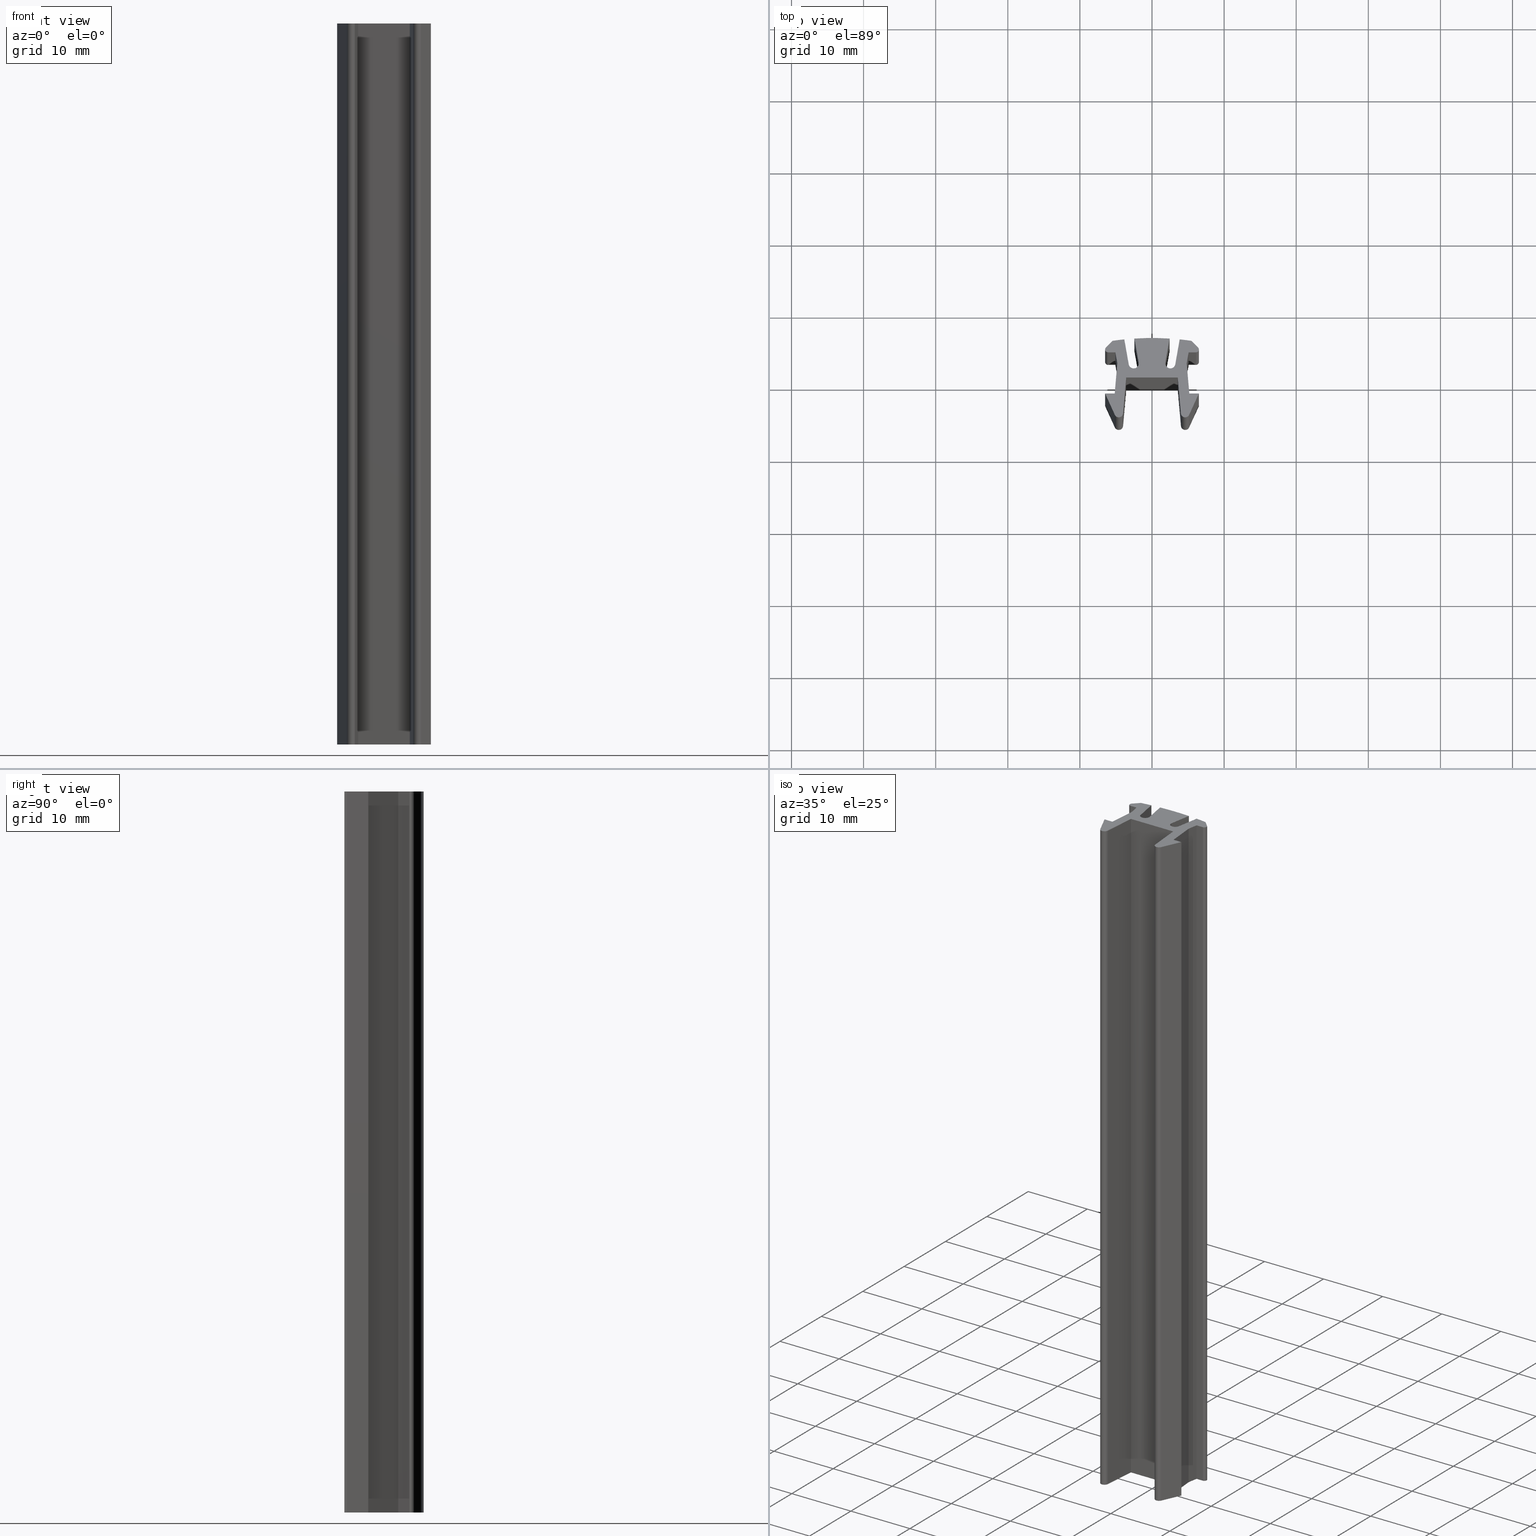
[diagram: canonical four-view strip — front | top / right | iso, engineering-drawing reading convention]
A machine part, canonical four-view strip (front | top / right | iso — engineering-drawing reading convention). The complete STEP part file that produces these views, byte-faithful:
ISO-10303-21;
HEADER;
/* Generated by software containing ST-Developer
 * from STEP Tools, Inc. (www.steptools.com) 
 */

FILE_DESCRIPTION(
/* description */ ('GUARN. COPRICAVA 10 PVC SEMIRIGID GRIGIA'),
/* implementation_level */ '2;1');

FILE_NAME(
/* name */ 'C:\\Users\\Tecnico5\\Documents\\CGUCA0000001.stp',
/* time_stamp */ '2020-07-14T10:42:14+02:00',
/* author */ ('tecnico5'),
/* organization */ (''),
/* preprocessor_version */ 'ST-DEVELOPER v17.2',
/* originating_system */ 'Autodesk Inventor 2019',
/* authorisation */ '');

FILE_SCHEMA (('AUTOMOTIVE_DESIGN { 1 0 10303 214 3 1 1 }'));
ENDSEC;

DATA;
#10=MECHANICAL_DESIGN_GEOMETRIC_PRESENTATION_REPRESENTATION('',(#75,#76,
#77,#78,#79,#80,#81,#82,#83,#84,#85,#86,#87,#88,#89,#90,#91,#92,#93,#94,
#95,#96,#97,#98,#99,#100,#101,#102,#103,#104,#105,#106,#107,#108,#109,#110,
#111,#112,#113,#114,#115,#116,#117,#118,#119,#120,#121,#122,#123,#124),
#1316);
#11=GEOMETRICALLY_BOUNDED_WIREFRAME_SHAPE_REPRESENTATION('',(#12,#13),#1315);
#12=GEOMETRIC_CURVE_SET('Schizzo1',(#35,#17,#18,#36,#37,#38,#19,#39,#40,
#20,#41,#42,#43,#44,#45,#46,#47,#48,#49,#50,#51,#52,#21,#53,#22,#23,#24,
#54,#25,#55));
#13=GEOMETRIC_CURVE_SET('Schizzo2',(#26,#56,#57,#58,#59,#60,#61,#27,#62,
#63,#64,#65,#66,#28,#67,#29,#68,#30,#69,#70,#31,#71,#32,#72,#33,#73,#74,
#34));
#14=SHAPE_REPRESENTATION_RELATIONSHIP('SRR','None',#1323,#16);
#15=SHAPE_REPRESENTATION_RELATIONSHIP('SRR','None',#1323,#11);
#16=ADVANCED_BREP_SHAPE_REPRESENTATION('',(#125),#1315);
#17=TRIMMED_CURVE('',#144,(#1182,PARAMETER_VALUE(3.56844741996877)),(#1183,
PARAMETER_VALUE(6.19591884457987)),.T.,.PARAMETER.);
#18=TRIMMED_CURVE('',#145,(#1185,PARAMETER_VALUE(3.22885911618951)),(#1186,
PARAMETER_VALUE(5.85633054080061)),.T.,.PARAMETER.);
#19=TRIMMED_CURVE('',#146,(#1194,PARAMETER_VALUE(2.35619455200195)),(#1195,
PARAMETER_VALUE(4.71238898038469)),.T.,.PARAMETER.);
#20=TRIMMED_CURVE('',#147,(#1201,PARAMETER_VALUE(4.71238898038469)),(#1202,
PARAMETER_VALUE(7.06858353238664)),.T.,.PARAMETER.);
#21=TRIMMED_CURVE('',#148,(#1228,PARAMETER_VALUE(3.31612557878923)),(#1229,
PARAMETER_VALUE(6.45771823237902)),.T.,.PARAMETER.);
#22=TRIMMED_CURVE('',#149,(#1233,PARAMETER_VALUE(1.67093266645578)),(#1234,
PARAMETER_VALUE(1.71376967660972)),.T.,.PARAMETER.);
#23=TRIMMED_CURVE('',#150,(#1236,PARAMETER_VALUE(1.42782297698007)),(#1237,
PARAMETER_VALUE(1.47065998636121)),.T.,.PARAMETER.);
#24=TRIMMED_CURVE('',#151,(#1239,PARAMETER_VALUE(1.50728109828847)),(#1240,
PARAMETER_VALUE(1.63431155452589)),.T.,.PARAMETER.);
#25=TRIMMED_CURVE('',#152,(#1244,PARAMETER_VALUE(2.96705972839036)),(#1245,
PARAMETER_VALUE(6.10865238198015)),.T.,.PARAMETER.);
#26=TRIMMED_CURVE('',#153,(#1249,PARAMETER_VALUE(3.22885911618951)),(#1250,
PARAMETER_VALUE(5.85633054080061)),.T.,.PARAMETER.);
#27=TRIMMED_CURVE('',#154,(#1264,PARAMETER_VALUE(3.56844741996877)),(#1265,
PARAMETER_VALUE(6.19591884457987)),.T.,.PARAMETER.);
#28=TRIMMED_CURVE('',#155,(#1277,PARAMETER_VALUE(2.35619455200195)),(#1278,
PARAMETER_VALUE(4.71238898038469)),.T.,.PARAMETER.);
#29=TRIMMED_CURVE('',#156,(#1282,PARAMETER_VALUE(1.67093266645578)),(#1283,
PARAMETER_VALUE(1.71376967660972)),.T.,.PARAMETER.);
#30=TRIMMED_CURVE('',#157,(#1287,PARAMETER_VALUE(3.31612557878923)),(#1288,
PARAMETER_VALUE(6.45771823237902)),.T.,.PARAMETER.);
#31=TRIMMED_CURVE('',#158,(#1294,PARAMETER_VALUE(2.96705972839036)),(#1295,
PARAMETER_VALUE(6.10865238198015)),.T.,.PARAMETER.);
#32=TRIMMED_CURVE('',#159,(#1299,PARAMETER_VALUE(1.42782297698007)),(#1300,
PARAMETER_VALUE(1.47065998636121)),.T.,.PARAMETER.);
#33=TRIMMED_CURVE('',#160,(#1304,PARAMETER_VALUE(4.71238898038469)),(#1305,
PARAMETER_VALUE(7.06858353238664)),.T.,.PARAMETER.);
#34=TRIMMED_CURVE('',#161,(#1311,PARAMETER_VALUE(1.50728109828847)),(#1312,
PARAMETER_VALUE(1.63431155452589)),.T.,.PARAMETER.);
#35=POLYLINE('',(#1179,#1180));
#36=POLYLINE('',(#1187,#1188));
#37=POLYLINE('',(#1189,#1190));
#38=POLYLINE('',(#1191,#1192));
#39=POLYLINE('',(#1196,#1197));
#40=POLYLINE('',(#1198,#1199));
#41=POLYLINE('',(#1203,#1204));
#42=POLYLINE('',(#1205,#1206));
#43=POLYLINE('',(#1207,#1208));
#44=POLYLINE('',(#1209,#1210));
#45=POLYLINE('',(#1211,#1212));
#46=POLYLINE('',(#1213,#1214));
#47=POLYLINE('',(#1215,#1216));
#48=POLYLINE('',(#1217,#1218));
#49=POLYLINE('',(#1219,#1220));
#50=POLYLINE('',(#1221,#1222));
#51=POLYLINE('',(#1223,#1224));
#52=POLYLINE('',(#1225,#1226));
#53=POLYLINE('',(#1230,#1231));
#54=POLYLINE('',(#1241,#1242));
#55=POLYLINE('',(#1246,#1247));
#56=POLYLINE('',(#1251,#1252));
#57=POLYLINE('',(#1253,#1254));
#58=POLYLINE('',(#1255,#1256));
#59=POLYLINE('',(#1257,#1258));
#60=POLYLINE('',(#1259,#1260));
#61=POLYLINE('',(#1261,#1262));
#62=POLYLINE('',(#1266,#1267));
#63=POLYLINE('',(#1268,#1269));
#64=POLYLINE('',(#1270,#1271));
#65=POLYLINE('',(#1272,#1273));
#66=POLYLINE('',(#1274,#1275));
#67=POLYLINE('',(#1279,#1280));
#68=POLYLINE('',(#1284,#1285));
#69=POLYLINE('',(#1289,#1290));
#70=POLYLINE('',(#1291,#1292));
#71=POLYLINE('',(#1296,#1297));
#72=POLYLINE('',(#1301,#1302));
#73=POLYLINE('',(#1306,#1307));
#74=POLYLINE('',(#1308,#1309));
#75=STYLED_ITEM('',(#1332),#125);
#76=STYLED_ITEM('',(#1333),#35);
#77=STYLED_ITEM('',(#1333),#17);
#78=STYLED_ITEM('',(#1333),#18);
#79=STYLED_ITEM('',(#1333),#36);
#80=STYLED_ITEM('',(#1333),#37);
#81=STYLED_ITEM('',(#1333),#38);
#82=STYLED_ITEM('',(#1333),#41);
#83=STYLED_ITEM('',(#1333),#42);
#84=STYLED_ITEM('',(#1333),#43);
#85=STYLED_ITEM('',(#1333),#44);
#86=STYLED_ITEM('',(#1333),#45);
#87=STYLED_ITEM('',(#1333),#46);
#88=STYLED_ITEM('',(#1333),#47);
#89=STYLED_ITEM('',(#1333),#50);
#90=STYLED_ITEM('',(#1333),#51);
#91=STYLED_ITEM('',(#1333),#52);
#92=STYLED_ITEM('',(#1333),#21);
#93=STYLED_ITEM('',(#1333),#53);
#94=STYLED_ITEM('',(#1333),#54);
#95=STYLED_ITEM('',(#1333),#25);
#96=STYLED_ITEM('',(#1333),#55);
#97=STYLED_ITEM('',(#1334),#26);
#98=STYLED_ITEM('',(#1334),#56);
#99=STYLED_ITEM('',(#1334),#57);
#100=STYLED_ITEM('',(#1334),#58);
#101=STYLED_ITEM('',(#1334),#59);
#102=STYLED_ITEM('',(#1334),#60);
#103=STYLED_ITEM('',(#1334),#61);
#104=STYLED_ITEM('',(#1334),#27);
#105=STYLED_ITEM('',(#1334),#62);
#106=STYLED_ITEM('',(#1334),#63);
#107=STYLED_ITEM('',(#1334),#64);
#108=STYLED_ITEM('',(#1334),#65);
#109=STYLED_ITEM('',(#1334),#66);
#110=STYLED_ITEM('',(#1334),#28);
#111=STYLED_ITEM('',(#1334),#67);
#112=STYLED_ITEM('',(#1334),#29);
#113=STYLED_ITEM('',(#1334),#68);
#114=STYLED_ITEM('',(#1334),#30);
#115=STYLED_ITEM('',(#1334),#69);
#116=STYLED_ITEM('',(#1334),#70);
#117=STYLED_ITEM('',(#1334),#31);
#118=STYLED_ITEM('',(#1334),#71);
#119=STYLED_ITEM('',(#1334),#32);
#120=STYLED_ITEM('',(#1334),#72);
#121=STYLED_ITEM('',(#1334),#33);
#122=STYLED_ITEM('',(#1334),#73);
#123=STYLED_ITEM('',(#1334),#74);
#124=STYLED_ITEM('',(#1334),#34);
#125=MANIFOLD_SOLID_BREP('Solido2',#722);
#126=CIRCLE('',#746,0.6);
#127=CIRCLE('',#747,0.6);
#128=CIRCLE('',#754,0.4);
#129=CIRCLE('',#755,0.4);
#130=CIRCLE('',#758,38.3963333612448);
#131=CIRCLE('',#759,38.3963333612448);
#132=CIRCLE('',#762,0.7);
#133=CIRCLE('',#763,0.7);
#134=CIRCLE('',#766,38.3963333612448);
#135=CIRCLE('',#767,38.3963333612448);
#136=CIRCLE('',#770,0.699999999999999);
#137=CIRCLE('',#771,0.699999999999999);
#138=CIRCLE('',#774,38.3963333612448);
#139=CIRCLE('',#775,38.3963333612448);
#140=CIRCLE('',#778,0.4);
#141=CIRCLE('',#779,0.4);
#142=CIRCLE('',#786,0.6);
#143=CIRCLE('',#787,0.6);
#144=CIRCLE('',#790,0.6);
#145=CIRCLE('',#791,0.6);
#146=CIRCLE('',#792,0.4);
#147=CIRCLE('',#793,0.4);
#148=CIRCLE('',#794,0.7);
#149=CIRCLE('',#795,38.3963333612448);
#150=CIRCLE('',#796,38.3963333612448);
#151=CIRCLE('',#797,38.3963333612448);
#152=CIRCLE('',#798,0.7);
#153=CIRCLE('',#799,0.6);
#154=CIRCLE('',#800,0.6);
#155=CIRCLE('',#801,0.4);
#156=CIRCLE('',#802,38.3963333612448);
#157=CIRCLE('',#803,0.7);
#158=CIRCLE('',#804,0.699999999999999);
#159=CIRCLE('',#805,38.3963333612448);
#160=CIRCLE('',#806,0.4);
#161=CIRCLE('',#807,38.3963333612448);
#162=CYLINDRICAL_SURFACE('',#745,0.6);
#163=CYLINDRICAL_SURFACE('',#753,0.4);
#164=CYLINDRICAL_SURFACE('',#757,38.3963333612448);
#165=CYLINDRICAL_SURFACE('',#761,0.7);
#166=CYLINDRICAL_SURFACE('',#765,38.3963333612448);
#167=CYLINDRICAL_SURFACE('',#769,0.699999999999999);
#168=CYLINDRICAL_SURFACE('',#773,38.3963333612448);
#169=CYLINDRICAL_SURFACE('',#777,0.4);
#170=CYLINDRICAL_SURFACE('',#785,0.6);
#171=FACE_OUTER_BOUND('',#201,.T.);
#172=FACE_OUTER_BOUND('',#202,.T.);
#173=FACE_OUTER_BOUND('',#203,.T.);
#174=FACE_OUTER_BOUND('',#204,.T.);
#175=FACE_OUTER_BOUND('',#205,.T.);
#176=FACE_OUTER_BOUND('',#206,.T.);
#177=FACE_OUTER_BOUND('',#207,.T.);
#178=FACE_OUTER_BOUND('',#208,.T.);
#179=FACE_OUTER_BOUND('',#209,.T.);
#180=FACE_OUTER_BOUND('',#210,.T.);
#181=FACE_OUTER_BOUND('',#211,.T.);
#182=FACE_OUTER_BOUND('',#212,.T.);
#183=FACE_OUTER_BOUND('',#213,.T.);
#184=FACE_OUTER_BOUND('',#214,.T.);
#185=FACE_OUTER_BOUND('',#215,.T.);
#186=FACE_OUTER_BOUND('',#216,.T.);
#187=FACE_OUTER_BOUND('',#217,.T.);
#188=FACE_OUTER_BOUND('',#218,.T.);
#189=FACE_OUTER_BOUND('',#219,.T.);
#190=FACE_OUTER_BOUND('',#220,.T.);
#191=FACE_OUTER_BOUND('',#221,.T.);
#192=FACE_OUTER_BOUND('',#222,.T.);
#193=FACE_OUTER_BOUND('',#223,.T.);
#194=FACE_OUTER_BOUND('',#224,.T.);
#195=FACE_OUTER_BOUND('',#225,.T.);
#196=FACE_OUTER_BOUND('',#226,.T.);
#197=FACE_OUTER_BOUND('',#227,.T.);
#198=FACE_OUTER_BOUND('',#228,.T.);
#199=FACE_OUTER_BOUND('',#229,.T.);
#200=FACE_OUTER_BOUND('',#230,.T.);
#201=EDGE_LOOP('',(#503,#504,#505,#506));
#202=EDGE_LOOP('',(#507,#508,#509,#510));
#203=EDGE_LOOP('',(#511,#512,#513,#514));
#204=EDGE_LOOP('',(#515,#516,#517,#518));
#205=EDGE_LOOP('',(#519,#520,#521,#522));
#206=EDGE_LOOP('',(#523,#524,#525,#526));
#207=EDGE_LOOP('',(#527,#528,#529,#530));
#208=EDGE_LOOP('',(#531,#532,#533,#534));
#209=EDGE_LOOP('',(#535,#536,#537,#538));
#210=EDGE_LOOP('',(#539,#540,#541,#542));
#211=EDGE_LOOP('',(#543,#544,#545,#546));
#212=EDGE_LOOP('',(#547,#548,#549,#550));
#213=EDGE_LOOP('',(#551,#552,#553,#554));
#214=EDGE_LOOP('',(#555,#556,#557,#558));
#215=EDGE_LOOP('',(#559,#560,#561,#562));
#216=EDGE_LOOP('',(#563,#564,#565,#566));
#217=EDGE_LOOP('',(#567,#568,#569,#570));
#218=EDGE_LOOP('',(#571,#572,#573,#574));
#219=EDGE_LOOP('',(#575,#576,#577,#578));
#220=EDGE_LOOP('',(#579,#580,#581,#582));
#221=EDGE_LOOP('',(#583,#584,#585,#586));
#222=EDGE_LOOP('',(#587,#588,#589,#590));
#223=EDGE_LOOP('',(#591,#592,#593,#594));
#224=EDGE_LOOP('',(#595,#596,#597,#598));
#225=EDGE_LOOP('',(#599,#600,#601,#602));
#226=EDGE_LOOP('',(#603,#604,#605,#606));
#227=EDGE_LOOP('',(#607,#608,#609,#610));
#228=EDGE_LOOP('',(#611,#612,#613,#614));
#229=EDGE_LOOP('',(#615,#616,#617,#618,#619,#620,#621,#622,#623,#624,#625,
#626,#627,#628,#629,#630,#631,#632,#633,#634,#635,#636,#637,#638,#639,#640,
#641,#642));
#230=EDGE_LOOP('',(#643,#644,#645,#646,#647,#648,#649,#650,#651,#652,#653,
#654,#655,#656,#657,#658,#659,#660,#661,#662,#663,#664,#665,#666,#667,#668,
#669,#670));
#231=LINE('',#1012,#297);
#232=LINE('',#1014,#298);
#233=LINE('',#1016,#299);
#234=LINE('',#1017,#300);
#235=LINE('',#1020,#301);
#236=LINE('',#1022,#302);
#237=LINE('',#1023,#303);
#238=LINE('',#1026,#304);
#239=LINE('',#1028,#305);
#240=LINE('',#1029,#306);
#241=LINE('',#1035,#307);
#242=LINE('',#1038,#308);
#243=LINE('',#1040,#309);
#244=LINE('',#1041,#310);
#245=LINE('',#1044,#311);
#246=LINE('',#1046,#312);
#247=LINE('',#1047,#313);
#248=LINE('',#1050,#314);
#249=LINE('',#1052,#315);
#250=LINE('',#1053,#316);
#251=LINE('',#1056,#317);
#252=LINE('',#1058,#318);
#253=LINE('',#1059,#319);
#254=LINE('',#1062,#320);
#255=LINE('',#1064,#321);
#256=LINE('',#1065,#322);
#257=LINE('',#1071,#323);
#258=LINE('',#1074,#324);
#259=LINE('',#1076,#325);
#260=LINE('',#1077,#326);
#261=LINE('',#1083,#327);
#262=LINE('',#1086,#328);
#263=LINE('',#1088,#329);
#264=LINE('',#1089,#330);
#265=LINE('',#1095,#331);
#266=LINE('',#1098,#332);
#267=LINE('',#1100,#333);
#268=LINE('',#1101,#334);
#269=LINE('',#1107,#335);
#270=LINE('',#1110,#336);
#271=LINE('',#1112,#337);
#272=LINE('',#1113,#338);
#273=LINE('',#1119,#339);
#274=LINE('',#1122,#340);
#275=LINE('',#1124,#341);
#276=LINE('',#1125,#342);
#277=LINE('',#1131,#343);
#278=LINE('',#1134,#344);
#279=LINE('',#1136,#345);
#280=LINE('',#1137,#346);
#281=LINE('',#1143,#347);
#282=LINE('',#1146,#348);
#283=LINE('',#1148,#349);
#284=LINE('',#1149,#350);
#285=LINE('',#1152,#351);
#286=LINE('',#1154,#352);
#287=LINE('',#1155,#353);
#288=LINE('',#1158,#354);
#289=LINE('',#1160,#355);
#290=LINE('',#1161,#356);
#291=LINE('',#1164,#357);
#292=LINE('',#1166,#358);
#293=LINE('',#1167,#359);
#294=LINE('',#1170,#360);
#295=LINE('',#1172,#361);
#296=LINE('',#1173,#362);
#297=VECTOR('',#812,10.);
#298=VECTOR('',#813,10.);
#299=VECTOR('',#814,10.);
#300=VECTOR('',#815,10.);
#301=VECTOR('',#818,10.);
#302=VECTOR('',#819,10.);
#303=VECTOR('',#820,10.);
#304=VECTOR('',#823,10.);
#305=VECTOR('',#824,10.);
#306=VECTOR('',#825,10.);
#307=VECTOR('',#832,10.);
#308=VECTOR('',#835,10.);
#309=VECTOR('',#836,10.);
#310=VECTOR('',#837,10.);
#311=VECTOR('',#840,10.);
#312=VECTOR('',#841,10.);
#313=VECTOR('',#842,10.);
#314=VECTOR('',#845,10.);
#315=VECTOR('',#846,10.);
#316=VECTOR('',#847,10.);
#317=VECTOR('',#850,10.);
#318=VECTOR('',#851,10.);
#319=VECTOR('',#852,10.);
#320=VECTOR('',#855,10.);
#321=VECTOR('',#856,10.);
#322=VECTOR('',#857,10.);
#323=VECTOR('',#864,10.);
#324=VECTOR('',#867,10.);
#325=VECTOR('',#868,10.);
#326=VECTOR('',#869,10.);
#327=VECTOR('',#876,10.);
#328=VECTOR('',#879,10.);
#329=VECTOR('',#880,10.);
#330=VECTOR('',#881,10.);
#331=VECTOR('',#888,10.);
#332=VECTOR('',#891,10.);
#333=VECTOR('',#892,10.);
#334=VECTOR('',#893,10.);
#335=VECTOR('',#900,10.);
#336=VECTOR('',#903,10.);
#337=VECTOR('',#904,10.);
#338=VECTOR('',#905,10.);
#339=VECTOR('',#912,10.);
#340=VECTOR('',#915,10.);
#341=VECTOR('',#916,10.);
#342=VECTOR('',#917,10.);
#343=VECTOR('',#924,10.);
#344=VECTOR('',#927,10.);
#345=VECTOR('',#928,10.);
#346=VECTOR('',#929,10.);
#347=VECTOR('',#936,10.);
#348=VECTOR('',#939,10.);
#349=VECTOR('',#940,10.);
#350=VECTOR('',#941,10.);
#351=VECTOR('',#944,10.);
#352=VECTOR('',#945,10.);
#353=VECTOR('',#946,10.);
#354=VECTOR('',#949,10.);
#355=VECTOR('',#950,10.);
#356=VECTOR('',#951,10.);
#357=VECTOR('',#954,10.);
#358=VECTOR('',#955,10.);
#359=VECTOR('',#956,10.);
#360=VECTOR('',#959,10.);
#361=VECTOR('',#960,10.);
#362=VECTOR('',#961,10.);
#363=VERTEX_POINT('',#1010);
#364=VERTEX_POINT('',#1011);
#365=VERTEX_POINT('',#1013);
#366=VERTEX_POINT('',#1015);
#367=VERTEX_POINT('',#1019);
#368=VERTEX_POINT('',#1021);
#369=VERTEX_POINT('',#1025);
#370=VERTEX_POINT('',#1027);
#371=VERTEX_POINT('',#1031);
#372=VERTEX_POINT('',#1033);
#373=VERTEX_POINT('',#1037);
#374=VERTEX_POINT('',#1039);
#375=VERTEX_POINT('',#1043);
#376=VERTEX_POINT('',#1045);
#377=VERTEX_POINT('',#1049);
#378=VERTEX_POINT('',#1051);
#379=VERTEX_POINT('',#1055);
#380=VERTEX_POINT('',#1057);
#381=VERTEX_POINT('',#1061);
#382=VERTEX_POINT('',#1063);
#383=VERTEX_POINT('',#1067);
#384=VERTEX_POINT('',#1069);
#385=VERTEX_POINT('',#1073);
#386=VERTEX_POINT('',#1075);
#387=VERTEX_POINT('',#1079);
#388=VERTEX_POINT('',#1081);
#389=VERTEX_POINT('',#1085);
#390=VERTEX_POINT('',#1087);
#391=VERTEX_POINT('',#1091);
#392=VERTEX_POINT('',#1093);
#393=VERTEX_POINT('',#1097);
#394=VERTEX_POINT('',#1099);
#395=VERTEX_POINT('',#1103);
#396=VERTEX_POINT('',#1105);
#397=VERTEX_POINT('',#1109);
#398=VERTEX_POINT('',#1111);
#399=VERTEX_POINT('',#1115);
#400=VERTEX_POINT('',#1117);
#401=VERTEX_POINT('',#1121);
#402=VERTEX_POINT('',#1123);
#403=VERTEX_POINT('',#1127);
#404=VERTEX_POINT('',#1129);
#405=VERTEX_POINT('',#1133);
#406=VERTEX_POINT('',#1135);
#407=VERTEX_POINT('',#1139);
#408=VERTEX_POINT('',#1141);
#409=VERTEX_POINT('',#1145);
#410=VERTEX_POINT('',#1147);
#411=VERTEX_POINT('',#1151);
#412=VERTEX_POINT('',#1153);
#413=VERTEX_POINT('',#1157);
#414=VERTEX_POINT('',#1159);
#415=VERTEX_POINT('',#1163);
#416=VERTEX_POINT('',#1165);
#417=VERTEX_POINT('',#1169);
#418=VERTEX_POINT('',#1171);
#419=EDGE_CURVE('',#363,#364,#231,.T.);
#420=EDGE_CURVE('',#364,#365,#232,.T.);
#421=EDGE_CURVE('',#366,#365,#233,.T.);
#422=EDGE_CURVE('',#363,#366,#234,.T.);
#423=EDGE_CURVE('',#367,#363,#235,.T.);
#424=EDGE_CURVE('',#368,#366,#236,.T.);
#425=EDGE_CURVE('',#367,#368,#237,.T.);
#426=EDGE_CURVE('',#369,#367,#238,.T.);
#427=EDGE_CURVE('',#370,#368,#239,.T.);
#428=EDGE_CURVE('',#369,#370,#240,.T.);
#429=EDGE_CURVE('',#371,#369,#126,.T.);
#430=EDGE_CURVE('',#372,#370,#127,.T.);
#431=EDGE_CURVE('',#371,#372,#241,.T.);
#432=EDGE_CURVE('',#373,#371,#242,.T.);
#433=EDGE_CURVE('',#374,#372,#243,.T.);
#434=EDGE_CURVE('',#373,#374,#244,.T.);
#435=EDGE_CURVE('',#375,#373,#245,.T.);
#436=EDGE_CURVE('',#376,#374,#246,.T.);
#437=EDGE_CURVE('',#375,#376,#247,.T.);
#438=EDGE_CURVE('',#377,#375,#248,.T.);
#439=EDGE_CURVE('',#378,#376,#249,.T.);
#440=EDGE_CURVE('',#377,#378,#250,.T.);
#441=EDGE_CURVE('',#379,#377,#251,.T.);
#442=EDGE_CURVE('',#380,#378,#252,.T.);
#443=EDGE_CURVE('',#379,#380,#253,.T.);
#444=EDGE_CURVE('',#381,#379,#254,.T.);
#445=EDGE_CURVE('',#382,#380,#255,.T.);
#446=EDGE_CURVE('',#381,#382,#256,.T.);
#447=EDGE_CURVE('',#383,#381,#128,.T.);
#448=EDGE_CURVE('',#384,#382,#129,.T.);
#449=EDGE_CURVE('',#383,#384,#257,.T.);
#450=EDGE_CURVE('',#385,#383,#258,.T.);
#451=EDGE_CURVE('',#386,#384,#259,.T.);
#452=EDGE_CURVE('',#385,#386,#260,.T.);
#453=EDGE_CURVE('',#387,#385,#130,.T.);
#454=EDGE_CURVE('',#388,#386,#131,.T.);
#455=EDGE_CURVE('',#387,#388,#261,.T.);
#456=EDGE_CURVE('',#389,#387,#262,.T.);
#457=EDGE_CURVE('',#390,#388,#263,.T.);
#458=EDGE_CURVE('',#389,#390,#264,.T.);
#459=EDGE_CURVE('',#391,#389,#132,.T.);
#460=EDGE_CURVE('',#392,#390,#133,.T.);
#461=EDGE_CURVE('',#391,#392,#265,.T.);
#462=EDGE_CURVE('',#393,#391,#266,.T.);
#463=EDGE_CURVE('',#394,#392,#267,.T.);
#464=EDGE_CURVE('',#393,#394,#268,.T.);
#465=EDGE_CURVE('',#395,#393,#134,.T.);
#466=EDGE_CURVE('',#396,#394,#135,.T.);
#467=EDGE_CURVE('',#395,#396,#269,.T.);
#468=EDGE_CURVE('',#397,#395,#270,.T.);
#469=EDGE_CURVE('',#398,#396,#271,.T.);
#470=EDGE_CURVE('',#397,#398,#272,.T.);
#471=EDGE_CURVE('',#399,#397,#136,.T.);
#472=EDGE_CURVE('',#400,#398,#137,.T.);
#473=EDGE_CURVE('',#399,#400,#273,.T.);
#474=EDGE_CURVE('',#401,#399,#274,.T.);
#475=EDGE_CURVE('',#402,#400,#275,.T.);
#476=EDGE_CURVE('',#401,#402,#276,.T.);
#477=EDGE_CURVE('',#403,#401,#138,.T.);
#478=EDGE_CURVE('',#404,#402,#139,.T.);
#479=EDGE_CURVE('',#403,#404,#277,.T.);
#480=EDGE_CURVE('',#405,#403,#278,.T.);
#481=EDGE_CURVE('',#406,#404,#279,.T.);
#482=EDGE_CURVE('',#405,#406,#280,.T.);
#483=EDGE_CURVE('',#407,#405,#140,.T.);
#484=EDGE_CURVE('',#408,#406,#141,.T.);
#485=EDGE_CURVE('',#407,#408,#281,.T.);
#486=EDGE_CURVE('',#409,#407,#282,.T.);
#487=EDGE_CURVE('',#410,#408,#283,.T.);
#488=EDGE_CURVE('',#409,#410,#284,.T.);
#489=EDGE_CURVE('',#411,#409,#285,.T.);
#490=EDGE_CURVE('',#412,#410,#286,.T.);
#491=EDGE_CURVE('',#411,#412,#287,.T.);
#492=EDGE_CURVE('',#413,#411,#288,.T.);
#493=EDGE_CURVE('',#414,#412,#289,.T.);
#494=EDGE_CURVE('',#413,#414,#290,.T.);
#495=EDGE_CURVE('',#415,#413,#291,.T.);
#496=EDGE_CURVE('',#416,#414,#292,.T.);
#497=EDGE_CURVE('',#415,#416,#293,.T.);
#498=EDGE_CURVE('',#417,#415,#294,.T.);
#499=EDGE_CURVE('',#418,#416,#295,.T.);
#500=EDGE_CURVE('',#417,#418,#296,.T.);
#501=EDGE_CURVE('',#364,#417,#142,.T.);
#502=EDGE_CURVE('',#365,#418,#143,.T.);
#503=ORIENTED_EDGE('',*,*,#419,.T.);
#504=ORIENTED_EDGE('',*,*,#420,.T.);
#505=ORIENTED_EDGE('',*,*,#421,.F.);
#506=ORIENTED_EDGE('',*,*,#422,.F.);
#507=ORIENTED_EDGE('',*,*,#423,.T.);
#508=ORIENTED_EDGE('',*,*,#422,.T.);
#509=ORIENTED_EDGE('',*,*,#424,.F.);
#510=ORIENTED_EDGE('',*,*,#425,.F.);
#511=ORIENTED_EDGE('',*,*,#426,.T.);
#512=ORIENTED_EDGE('',*,*,#425,.T.);
#513=ORIENTED_EDGE('',*,*,#427,.F.);
#514=ORIENTED_EDGE('',*,*,#428,.F.);
#515=ORIENTED_EDGE('',*,*,#429,.T.);
#516=ORIENTED_EDGE('',*,*,#428,.T.);
#517=ORIENTED_EDGE('',*,*,#430,.F.);
#518=ORIENTED_EDGE('',*,*,#431,.F.);
#519=ORIENTED_EDGE('',*,*,#432,.T.);
#520=ORIENTED_EDGE('',*,*,#431,.T.);
#521=ORIENTED_EDGE('',*,*,#433,.F.);
#522=ORIENTED_EDGE('',*,*,#434,.F.);
#523=ORIENTED_EDGE('',*,*,#435,.T.);
#524=ORIENTED_EDGE('',*,*,#434,.T.);
#525=ORIENTED_EDGE('',*,*,#436,.F.);
#526=ORIENTED_EDGE('',*,*,#437,.F.);
#527=ORIENTED_EDGE('',*,*,#438,.T.);
#528=ORIENTED_EDGE('',*,*,#437,.T.);
#529=ORIENTED_EDGE('',*,*,#439,.F.);
#530=ORIENTED_EDGE('',*,*,#440,.F.);
#531=ORIENTED_EDGE('',*,*,#441,.T.);
#532=ORIENTED_EDGE('',*,*,#440,.T.);
#533=ORIENTED_EDGE('',*,*,#442,.F.);
#534=ORIENTED_EDGE('',*,*,#443,.F.);
#535=ORIENTED_EDGE('',*,*,#444,.T.);
#536=ORIENTED_EDGE('',*,*,#443,.T.);
#537=ORIENTED_EDGE('',*,*,#445,.F.);
#538=ORIENTED_EDGE('',*,*,#446,.F.);
#539=ORIENTED_EDGE('',*,*,#447,.T.);
#540=ORIENTED_EDGE('',*,*,#446,.T.);
#541=ORIENTED_EDGE('',*,*,#448,.F.);
#542=ORIENTED_EDGE('',*,*,#449,.F.);
#543=ORIENTED_EDGE('',*,*,#450,.T.);
#544=ORIENTED_EDGE('',*,*,#449,.T.);
#545=ORIENTED_EDGE('',*,*,#451,.F.);
#546=ORIENTED_EDGE('',*,*,#452,.F.);
#547=ORIENTED_EDGE('',*,*,#453,.T.);
#548=ORIENTED_EDGE('',*,*,#452,.T.);
#549=ORIENTED_EDGE('',*,*,#454,.F.);
#550=ORIENTED_EDGE('',*,*,#455,.F.);
#551=ORIENTED_EDGE('',*,*,#456,.T.);
#552=ORIENTED_EDGE('',*,*,#455,.T.);
#553=ORIENTED_EDGE('',*,*,#457,.F.);
#554=ORIENTED_EDGE('',*,*,#458,.F.);
#555=ORIENTED_EDGE('',*,*,#459,.T.);
#556=ORIENTED_EDGE('',*,*,#458,.T.);
#557=ORIENTED_EDGE('',*,*,#460,.F.);
#558=ORIENTED_EDGE('',*,*,#461,.F.);
#559=ORIENTED_EDGE('',*,*,#462,.T.);
#560=ORIENTED_EDGE('',*,*,#461,.T.);
#561=ORIENTED_EDGE('',*,*,#463,.F.);
#562=ORIENTED_EDGE('',*,*,#464,.F.);
#563=ORIENTED_EDGE('',*,*,#465,.T.);
#564=ORIENTED_EDGE('',*,*,#464,.T.);
#565=ORIENTED_EDGE('',*,*,#466,.F.);
#566=ORIENTED_EDGE('',*,*,#467,.F.);
#567=ORIENTED_EDGE('',*,*,#468,.T.);
#568=ORIENTED_EDGE('',*,*,#467,.T.);
#569=ORIENTED_EDGE('',*,*,#469,.F.);
#570=ORIENTED_EDGE('',*,*,#470,.F.);
#571=ORIENTED_EDGE('',*,*,#471,.T.);
#572=ORIENTED_EDGE('',*,*,#470,.T.);
#573=ORIENTED_EDGE('',*,*,#472,.F.);
#574=ORIENTED_EDGE('',*,*,#473,.F.);
#575=ORIENTED_EDGE('',*,*,#474,.T.);
#576=ORIENTED_EDGE('',*,*,#473,.T.);
#577=ORIENTED_EDGE('',*,*,#475,.F.);
#578=ORIENTED_EDGE('',*,*,#476,.F.);
#579=ORIENTED_EDGE('',*,*,#477,.T.);
#580=ORIENTED_EDGE('',*,*,#476,.T.);
#581=ORIENTED_EDGE('',*,*,#478,.F.);
#582=ORIENTED_EDGE('',*,*,#479,.F.);
#583=ORIENTED_EDGE('',*,*,#480,.T.);
#584=ORIENTED_EDGE('',*,*,#479,.T.);
#585=ORIENTED_EDGE('',*,*,#481,.F.);
#586=ORIENTED_EDGE('',*,*,#482,.F.);
#587=ORIENTED_EDGE('',*,*,#483,.T.);
#588=ORIENTED_EDGE('',*,*,#482,.T.);
#589=ORIENTED_EDGE('',*,*,#484,.F.);
#590=ORIENTED_EDGE('',*,*,#485,.F.);
#591=ORIENTED_EDGE('',*,*,#486,.T.);
#592=ORIENTED_EDGE('',*,*,#485,.T.);
#593=ORIENTED_EDGE('',*,*,#487,.F.);
#594=ORIENTED_EDGE('',*,*,#488,.F.);
#595=ORIENTED_EDGE('',*,*,#489,.T.);
#596=ORIENTED_EDGE('',*,*,#488,.T.);
#597=ORIENTED_EDGE('',*,*,#490,.F.);
#598=ORIENTED_EDGE('',*,*,#491,.F.);
#599=ORIENTED_EDGE('',*,*,#492,.T.);
#600=ORIENTED_EDGE('',*,*,#491,.T.);
#601=ORIENTED_EDGE('',*,*,#493,.F.);
#602=ORIENTED_EDGE('',*,*,#494,.F.);
#603=ORIENTED_EDGE('',*,*,#495,.T.);
#604=ORIENTED_EDGE('',*,*,#494,.T.);
#605=ORIENTED_EDGE('',*,*,#496,.F.);
#606=ORIENTED_EDGE('',*,*,#497,.F.);
#607=ORIENTED_EDGE('',*,*,#498,.T.);
#608=ORIENTED_EDGE('',*,*,#497,.T.);
#609=ORIENTED_EDGE('',*,*,#499,.F.);
#610=ORIENTED_EDGE('',*,*,#500,.F.);
#611=ORIENTED_EDGE('',*,*,#501,.T.);
#612=ORIENTED_EDGE('',*,*,#500,.T.);
#613=ORIENTED_EDGE('',*,*,#502,.F.);
#614=ORIENTED_EDGE('',*,*,#420,.F.);
#615=ORIENTED_EDGE('',*,*,#502,.T.);
#616=ORIENTED_EDGE('',*,*,#499,.T.);
#617=ORIENTED_EDGE('',*,*,#496,.T.);
#618=ORIENTED_EDGE('',*,*,#493,.T.);
#619=ORIENTED_EDGE('',*,*,#490,.T.);
#620=ORIENTED_EDGE('',*,*,#487,.T.);
#621=ORIENTED_EDGE('',*,*,#484,.T.);
#622=ORIENTED_EDGE('',*,*,#481,.T.);
#623=ORIENTED_EDGE('',*,*,#478,.T.);
#624=ORIENTED_EDGE('',*,*,#475,.T.);
#625=ORIENTED_EDGE('',*,*,#472,.T.);
#626=ORIENTED_EDGE('',*,*,#469,.T.);
#627=ORIENTED_EDGE('',*,*,#466,.T.);
#628=ORIENTED_EDGE('',*,*,#463,.T.);
#629=ORIENTED_EDGE('',*,*,#460,.T.);
#630=ORIENTED_EDGE('',*,*,#457,.T.);
#631=ORIENTED_EDGE('',*,*,#454,.T.);
#632=ORIENTED_EDGE('',*,*,#451,.T.);
#633=ORIENTED_EDGE('',*,*,#448,.T.);
#634=ORIENTED_EDGE('',*,*,#445,.T.);
#635=ORIENTED_EDGE('',*,*,#442,.T.);
#636=ORIENTED_EDGE('',*,*,#439,.T.);
#637=ORIENTED_EDGE('',*,*,#436,.T.);
#638=ORIENTED_EDGE('',*,*,#433,.T.);
#639=ORIENTED_EDGE('',*,*,#430,.T.);
#640=ORIENTED_EDGE('',*,*,#427,.T.);
#641=ORIENTED_EDGE('',*,*,#424,.T.);
#642=ORIENTED_EDGE('',*,*,#421,.T.);
#643=ORIENTED_EDGE('',*,*,#501,.F.);
#644=ORIENTED_EDGE('',*,*,#419,.F.);
#645=ORIENTED_EDGE('',*,*,#423,.F.);
#646=ORIENTED_EDGE('',*,*,#426,.F.);
#647=ORIENTED_EDGE('',*,*,#429,.F.);
#648=ORIENTED_EDGE('',*,*,#432,.F.);
#649=ORIENTED_EDGE('',*,*,#435,.F.);
#650=ORIENTED_EDGE('',*,*,#438,.F.);
#651=ORIENTED_EDGE('',*,*,#441,.F.);
#652=ORIENTED_EDGE('',*,*,#444,.F.);
#653=ORIENTED_EDGE('',*,*,#447,.F.);
#654=ORIENTED_EDGE('',*,*,#450,.F.);
#655=ORIENTED_EDGE('',*,*,#453,.F.);
#656=ORIENTED_EDGE('',*,*,#456,.F.);
#657=ORIENTED_EDGE('',*,*,#459,.F.);
#658=ORIENTED_EDGE('',*,*,#462,.F.);
#659=ORIENTED_EDGE('',*,*,#465,.F.);
#660=ORIENTED_EDGE('',*,*,#468,.F.);
#661=ORIENTED_EDGE('',*,*,#471,.F.);
#662=ORIENTED_EDGE('',*,*,#474,.F.);
#663=ORIENTED_EDGE('',*,*,#477,.F.);
#664=ORIENTED_EDGE('',*,*,#480,.F.);
#665=ORIENTED_EDGE('',*,*,#483,.F.);
#666=ORIENTED_EDGE('',*,*,#486,.F.);
#667=ORIENTED_EDGE('',*,*,#489,.F.);
#668=ORIENTED_EDGE('',*,*,#492,.F.);
#669=ORIENTED_EDGE('',*,*,#495,.F.);
#670=ORIENTED_EDGE('',*,*,#498,.F.);
#671=PLANE('',#742);
#672=PLANE('',#743);
#673=PLANE('',#744);
#674=PLANE('',#748);
#675=PLANE('',#749);
#676=PLANE('',#750);
#677=PLANE('',#751);
#678=PLANE('',#752);
#679=PLANE('',#756);
#680=PLANE('',#760);
#681=PLANE('',#764);
#682=PLANE('',#768);
#683=PLANE('',#772);
#684=PLANE('',#776);
#685=PLANE('',#780);
#686=PLANE('',#781);
#687=PLANE('',#782);
#688=PLANE('',#783);
#689=PLANE('',#784);
#690=PLANE('',#788);
#691=PLANE('',#789);
#692=ADVANCED_FACE('',(#171),#671,.T.);
#693=ADVANCED_FACE('',(#172),#672,.T.);
#694=ADVANCED_FACE('',(#173),#673,.T.);
#695=ADVANCED_FACE('',(#174),#162,.T.);
#696=ADVANCED_FACE('',(#175),#674,.T.);
#697=ADVANCED_FACE('',(#176),#675,.T.);
#698=ADVANCED_FACE('',(#177),#676,.T.);
#699=ADVANCED_FACE('',(#178),#677,.T.);
#700=ADVANCED_FACE('',(#179),#678,.T.);
#701=ADVANCED_FACE('',(#180),#163,.T.);
#702=ADVANCED_FACE('',(#181),#679,.T.);
#703=ADVANCED_FACE('',(#182),#164,.T.);
#704=ADVANCED_FACE('',(#183),#680,.T.);
#705=ADVANCED_FACE('',(#184),#165,.F.);
#706=ADVANCED_FACE('',(#185),#681,.T.);
#707=ADVANCED_FACE('',(#186),#166,.T.);
#708=ADVANCED_FACE('',(#187),#682,.T.);
#709=ADVANCED_FACE('',(#188),#167,.F.);
#710=ADVANCED_FACE('',(#189),#683,.T.);
#711=ADVANCED_FACE('',(#190),#168,.T.);
#712=ADVANCED_FACE('',(#191),#684,.T.);
#713=ADVANCED_FACE('',(#192),#169,.T.);
#714=ADVANCED_FACE('',(#193),#685,.T.);
#715=ADVANCED_FACE('',(#194),#686,.T.);
#716=ADVANCED_FACE('',(#195),#687,.T.);
#717=ADVANCED_FACE('',(#196),#688,.T.);
#718=ADVANCED_FACE('',(#197),#689,.T.);
#719=ADVANCED_FACE('',(#198),#170,.T.);
#720=ADVANCED_FACE('',(#199),#690,.T.);
#721=ADVANCED_FACE('',(#200),#691,.F.);
#722=CLOSED_SHELL('',(#692,#693,#694,#695,#696,#697,#698,#699,#700,#701,
#702,#703,#704,#705,#706,#707,#708,#709,#710,#711,#712,#713,#714,#715,#716,
#717,#718,#719,#720,#721));
#723=DERIVED_UNIT_ELEMENT(#725,1.);
#724=DERIVED_UNIT_ELEMENT(#1318,3.);
#725=(
MASS_UNIT()
NAMED_UNIT(*)
SI_UNIT($,.GRAM.)
);
#726=DERIVED_UNIT((#723,#724));
#727=MEASURE_REPRESENTATION_ITEM('density measure',
POSITIVE_RATIO_MEASURE(0.5),#726);
#728=PROPERTY_DEFINITION_REPRESENTATION(#733,#730);
#729=PROPERTY_DEFINITION_REPRESENTATION(#734,#731);
#730=REPRESENTATION('material name',(#732),#1315);
#731=REPRESENTATION('density',(#727),#1315);
#732=DESCRIPTIVE_REPRESENTATION_ITEM('PVC Grigio','PVC Grigio');
#733=PROPERTY_DEFINITION('material property','material name',#1325);
#734=PROPERTY_DEFINITION('material property','density of part',#1325);
#735=DATE_TIME_ROLE('creation_date');
#736=APPLIED_DATE_AND_TIME_ASSIGNMENT(#737,#735,(#1325));
#737=DATE_AND_TIME(#738,#739);
#738=CALENDAR_DATE(2017,17,7);
#739=LOCAL_TIME(15,11,31.,#740);
#740=COORDINATED_UNIVERSAL_TIME_OFFSET(0,0,.BEHIND.);
#741=AXIS2_PLACEMENT_3D('placement',#1008,#808,#809);
#742=AXIS2_PLACEMENT_3D('',#1009,#810,#811);
#743=AXIS2_PLACEMENT_3D('',#1018,#816,#817);
#744=AXIS2_PLACEMENT_3D('',#1024,#821,#822);
#745=AXIS2_PLACEMENT_3D('',#1030,#826,#827);
#746=AXIS2_PLACEMENT_3D('',#1032,#828,#829);
#747=AXIS2_PLACEMENT_3D('',#1034,#830,#831);
#748=AXIS2_PLACEMENT_3D('',#1036,#833,#834);
#749=AXIS2_PLACEMENT_3D('',#1042,#838,#839);
#750=AXIS2_PLACEMENT_3D('',#1048,#843,#844);
#751=AXIS2_PLACEMENT_3D('',#1054,#848,#849);
#752=AXIS2_PLACEMENT_3D('',#1060,#853,#854);
#753=AXIS2_PLACEMENT_3D('',#1066,#858,#859);
#754=AXIS2_PLACEMENT_3D('',#1068,#860,#861);
#755=AXIS2_PLACEMENT_3D('',#1070,#862,#863);
#756=AXIS2_PLACEMENT_3D('',#1072,#865,#866);
#757=AXIS2_PLACEMENT_3D('',#1078,#870,#871);
#758=AXIS2_PLACEMENT_3D('',#1080,#872,#873);
#759=AXIS2_PLACEMENT_3D('',#1082,#874,#875);
#760=AXIS2_PLACEMENT_3D('',#1084,#877,#878);
#761=AXIS2_PLACEMENT_3D('',#1090,#882,#883);
#762=AXIS2_PLACEMENT_3D('',#1092,#884,#885);
#763=AXIS2_PLACEMENT_3D('',#1094,#886,#887);
#764=AXIS2_PLACEMENT_3D('',#1096,#889,#890);
#765=AXIS2_PLACEMENT_3D('',#1102,#894,#895);
#766=AXIS2_PLACEMENT_3D('',#1104,#896,#897);
#767=AXIS2_PLACEMENT_3D('',#1106,#898,#899);
#768=AXIS2_PLACEMENT_3D('',#1108,#901,#902);
#769=AXIS2_PLACEMENT_3D('',#1114,#906,#907);
#770=AXIS2_PLACEMENT_3D('',#1116,#908,#909);
#771=AXIS2_PLACEMENT_3D('',#1118,#910,#911);
#772=AXIS2_PLACEMENT_3D('',#1120,#913,#914);
#773=AXIS2_PLACEMENT_3D('',#1126,#918,#919);
#774=AXIS2_PLACEMENT_3D('',#1128,#920,#921);
#775=AXIS2_PLACEMENT_3D('',#1130,#922,#923);
#776=AXIS2_PLACEMENT_3D('',#1132,#925,#926);
#777=AXIS2_PLACEMENT_3D('',#1138,#930,#931);
#778=AXIS2_PLACEMENT_3D('',#1140,#932,#933);
#779=AXIS2_PLACEMENT_3D('',#1142,#934,#935);
#780=AXIS2_PLACEMENT_3D('',#1144,#937,#938);
#781=AXIS2_PLACEMENT_3D('',#1150,#942,#943);
#782=AXIS2_PLACEMENT_3D('',#1156,#947,#948);
#783=AXIS2_PLACEMENT_3D('',#1162,#952,#953);
#784=AXIS2_PLACEMENT_3D('',#1168,#957,#958);
#785=AXIS2_PLACEMENT_3D('',#1174,#962,#963);
#786=AXIS2_PLACEMENT_3D('',#1175,#964,#965);
#787=AXIS2_PLACEMENT_3D('',#1176,#966,#967);
#788=AXIS2_PLACEMENT_3D('',#1177,#968,#969);
#789=AXIS2_PLACEMENT_3D('',#1178,#970,#971);
#790=AXIS2_PLACEMENT_3D('',#1181,#972,#973);
#791=AXIS2_PLACEMENT_3D('',#1184,#974,#975);
#792=AXIS2_PLACEMENT_3D('',#1193,#976,#977);
#793=AXIS2_PLACEMENT_3D('',#1200,#978,#979);
#794=AXIS2_PLACEMENT_3D('',#1227,#980,#981);
#795=AXIS2_PLACEMENT_3D('',#1232,#982,#983);
#796=AXIS2_PLACEMENT_3D('',#1235,#984,#985);
#797=AXIS2_PLACEMENT_3D('',#1238,#986,#987);
#798=AXIS2_PLACEMENT_3D('',#1243,#988,#989);
#799=AXIS2_PLACEMENT_3D('',#1248,#990,#991);
#800=AXIS2_PLACEMENT_3D('',#1263,#992,#993);
#801=AXIS2_PLACEMENT_3D('',#1276,#994,#995);
#802=AXIS2_PLACEMENT_3D('',#1281,#996,#997);
#803=AXIS2_PLACEMENT_3D('',#1286,#998,#999);
#804=AXIS2_PLACEMENT_3D('',#1293,#1000,#1001);
#805=AXIS2_PLACEMENT_3D('',#1298,#1002,#1003);
#806=AXIS2_PLACEMENT_3D('',#1303,#1004,#1005);
#807=AXIS2_PLACEMENT_3D('',#1310,#1006,#1007);
#808=DIRECTION('axis',(0.,0.,1.));
#809=DIRECTION('refdir',(1.,0.,0.));
#810=DIRECTION('center_axis',(-0.996194698091746,-0.0871557427476584,0.));
#811=DIRECTION('ref_axis',(0.0871557427476584,-0.996194698091746,0.));
#812=DIRECTION('',(0.0871557427476584,-0.996194698091746,0.));
#813=DIRECTION('',(0.,0.,1.));
#814=DIRECTION('',(0.0871557427476584,-0.996194698091746,0.));
#815=DIRECTION('',(0.,0.,1.));
#816=DIRECTION('center_axis',(-9.03872984564851E-19,-1.,0.));
#817=DIRECTION('ref_axis',(1.,-9.03872984564851E-19,0.));
#818=DIRECTION('',(1.,-9.03872984564851E-19,0.));
#819=DIRECTION('',(1.,-9.03872984564851E-19,0.));
#820=DIRECTION('',(0.,0.,1.));
#821=DIRECTION('center_axis',(0.996194698091746,-0.0871557427476579,0.));
#822=DIRECTION('ref_axis',(0.0871557427476579,0.996194698091746,0.));
#823=DIRECTION('',(0.0871557427476579,0.996194698091746,0.));
#824=DIRECTION('',(0.0871557427476579,0.996194698091746,0.));
#825=DIRECTION('',(0.,0.,1.));
#826=DIRECTION('center_axis',(0.,0.,1.));
#827=DIRECTION('ref_axis',(-0.910272407610896,-0.414009835562227,0.));
#828=DIRECTION('center_axis',(0.,0.,1.));
#829=DIRECTION('ref_axis',(-0.910272407610896,-0.414009835562227,0.));
#830=DIRECTION('center_axis',(0.,0.,1.));
#831=DIRECTION('ref_axis',(-0.910272407610896,-0.414009835562227,0.));
#832=DIRECTION('',(0.,0.,1.));
#833=DIRECTION('center_axis',(-0.910272407610896,-0.414009835562227,0.));
#834=DIRECTION('ref_axis',(0.414009835562227,-0.910272407610896,0.));
#835=DIRECTION('',(0.414009835562227,-0.910272407610896,0.));
#836=DIRECTION('',(0.414009835562227,-0.910272407610896,0.));
#837=DIRECTION('',(0.,0.,1.));
#838=DIRECTION('center_axis',(2.09445972409933E-16,1.,0.));
#839=DIRECTION('ref_axis',(-1.,2.09445972409933E-16,0.));
#840=DIRECTION('',(-1.,2.09445972409933E-16,0.));
#841=DIRECTION('',(-1.,2.09445972409933E-16,0.));
#842=DIRECTION('',(0.,0.,1.));
#843=DIRECTION('center_axis',(-0.996194698091746,0.0871557427476565,0.));
#844=DIRECTION('ref_axis',(-0.0871557427476565,-0.996194698091746,0.));
#845=DIRECTION('',(-0.0871557427476565,-0.996194698091746,0.));
#846=DIRECTION('',(-0.0871557427476565,-0.996194698091746,0.));
#847=DIRECTION('',(0.,0.,1.));
#848=DIRECTION('center_axis',(-0.984807753012208,-0.173648177666929,0.));
#849=DIRECTION('ref_axis',(0.173648177666929,-0.984807753012208,0.));
#850=DIRECTION('',(0.173648177666929,-0.984807753012208,0.));
#851=DIRECTION('',(0.173648177666929,-0.984807753012208,0.));
#852=DIRECTION('',(0.,0.,1.));
#853=DIRECTION('center_axis',(0.,-1.,0.));
#854=DIRECTION('ref_axis',(1.,0.,0.));
#855=DIRECTION('',(1.,0.,0.));
#856=DIRECTION('',(1.,0.,0.));
#857=DIRECTION('',(0.,0.,1.));
#858=DIRECTION('center_axis',(0.,0.,1.));
#859=DIRECTION('ref_axis',(-0.707106824892537,0.707106737480555,0.));
#860=DIRECTION('center_axis',(0.,0.,1.));
#861=DIRECTION('ref_axis',(-0.707106824892537,0.707106737480555,0.));
#862=DIRECTION('center_axis',(0.,0.,1.));
#863=DIRECTION('ref_axis',(-0.707106824892537,0.707106737480555,0.));
#864=DIRECTION('',(0.,0.,1.));
#865=DIRECTION('center_axis',(-0.707106781186547,0.707106781186548,0.));
#866=DIRECTION('ref_axis',(-0.707106781186548,-0.707106781186547,0.));
#867=DIRECTION('',(-0.707106781186548,-0.707106781186547,0.));
#868=DIRECTION('',(-0.707106781186548,-0.707106781186547,0.));
#869=DIRECTION('',(0.,0.,1.));
#870=DIRECTION('center_axis',(0.,0.,1.));
#871=DIRECTION('ref_axis',(-0.0999690742490072,0.994990544776078,0.));
#872=DIRECTION('center_axis',(0.,0.,1.));
#873=DIRECTION('ref_axis',(-0.0999690742490072,0.994990544776078,0.));
#874=DIRECTION('center_axis',(0.,0.,1.));
#875=DIRECTION('ref_axis',(-0.0999690742490072,0.994990544776078,0.));
#876=DIRECTION('',(0.,0.,1.));
#877=DIRECTION('center_axis',(0.984807753012208,0.173648177666929,0.));
#878=DIRECTION('ref_axis',(-0.173648177666929,0.984807753012208,0.));
#879=DIRECTION('',(-0.173648177666929,0.984807753012208,0.));
#880=DIRECTION('',(-0.173648177666929,0.984807753012208,0.));
#881=DIRECTION('',(0.,0.,1.));
#882=DIRECTION('center_axis',(0.,0.,1.));
#883=DIRECTION('ref_axis',(0.984807753012208,0.17364817766693,0.));
#884=DIRECTION('center_axis',(0.,0.,-1.));
#885=DIRECTION('ref_axis',(0.984807753012208,0.17364817766693,0.));
#886=DIRECTION('center_axis',(0.,0.,-1.));
#887=DIRECTION('ref_axis',(0.984807753012208,0.17364817766693,0.));
#888=DIRECTION('',(0.,0.,1.));
#889=DIRECTION('center_axis',(-0.984807753012208,-0.17364817766693,0.));
#890=DIRECTION('ref_axis',(0.17364817766693,-0.984807753012208,0.));
#891=DIRECTION('',(0.17364817766693,-0.984807753012208,0.));
#892=DIRECTION('',(0.17364817766693,-0.984807753012208,0.));
#893=DIRECTION('',(0.,0.,1.));
#894=DIRECTION('center_axis',(0.,0.,1.));
#895=DIRECTION('ref_axis',(0.0634725317638955,0.997983585892815,0.));
#896=DIRECTION('center_axis',(0.,0.,1.));
#897=DIRECTION('ref_axis',(0.0634725317638955,0.997983585892815,0.));
#898=DIRECTION('center_axis',(0.,0.,1.));
#899=DIRECTION('ref_axis',(0.0634725317638955,0.997983585892815,0.));
#900=DIRECTION('',(0.,0.,1.));
#901=DIRECTION('center_axis',(0.984807753012208,-0.17364817766693,0.));
#902=DIRECTION('ref_axis',(0.17364817766693,0.984807753012208,0.));
#903=DIRECTION('',(0.17364817766693,0.984807753012208,0.));
#904=DIRECTION('',(0.17364817766693,0.984807753012208,0.));
#905=DIRECTION('',(0.,0.,1.));
#906=DIRECTION('center_axis',(0.,0.,1.));
#907=DIRECTION('ref_axis',(0.984807753012208,-0.17364817766693,0.));
#908=DIRECTION('center_axis',(0.,0.,-1.));
#909=DIRECTION('ref_axis',(0.984807753012208,-0.17364817766693,0.));
#910=DIRECTION('center_axis',(0.,0.,-1.));
#911=DIRECTION('ref_axis',(0.984807753012208,-0.17364817766693,0.));
#912=DIRECTION('',(0.,0.,1.));
#913=DIRECTION('center_axis',(-0.984807753012208,0.17364817766693,0.));
#914=DIRECTION('ref_axis',(-0.17364817766693,-0.984807753012208,0.));
#915=DIRECTION('',(-0.17364817766693,-0.984807753012208,0.));
#916=DIRECTION('',(-0.17364817766693,-0.984807753012208,0.));
#917=DIRECTION('',(0.,0.,1.));
#918=DIRECTION('center_axis',(0.,0.,1.));
#919=DIRECTION('ref_axis',(0.14248675201838,0.989796709177825,0.));
#920=DIRECTION('center_axis',(0.,0.,1.));
#921=DIRECTION('ref_axis',(0.14248675201838,0.989796709177825,0.));
#922=DIRECTION('center_axis',(0.,0.,1.));
#923=DIRECTION('ref_axis',(0.14248675201838,0.989796709177825,0.));
#924=DIRECTION('',(0.,0.,1.));
#925=DIRECTION('center_axis',(0.707106769536687,0.707106792836408,0.));
#926=DIRECTION('ref_axis',(-0.707106792836408,0.707106769536687,0.));
#927=DIRECTION('',(-0.707106792836408,0.707106769536687,0.));
#928=DIRECTION('',(-0.707106792836408,0.707106769536687,0.));
#929=DIRECTION('',(0.,0.,1.));
#930=DIRECTION('center_axis',(0.,0.,1.));
#931=DIRECTION('ref_axis',(0.,-1.,0.));
#932=DIRECTION('center_axis',(0.,0.,1.));
#933=DIRECTION('ref_axis',(0.,-1.,0.));
#934=DIRECTION('center_axis',(0.,0.,1.));
#935=DIRECTION('ref_axis',(0.,-1.,0.));
#936=DIRECTION('',(0.,0.,1.));
#937=DIRECTION('center_axis',(0.,-1.,0.));
#938=DIRECTION('ref_axis',(1.,0.,0.));
#939=DIRECTION('',(1.,0.,0.));
#940=DIRECTION('',(1.,0.,0.));
#941=DIRECTION('',(0.,0.,1.));
#942=DIRECTION('center_axis',(0.984807753012208,-0.173648177666929,0.));
#943=DIRECTION('ref_axis',(0.173648177666929,0.984807753012208,0.));
#944=DIRECTION('',(0.173648177666929,0.984807753012208,0.));
#945=DIRECTION('',(0.173648177666929,0.984807753012208,0.));
#946=DIRECTION('',(0.,0.,1.));
#947=DIRECTION('center_axis',(0.996194698091746,0.0871557427476568,0.));
#948=DIRECTION('ref_axis',(-0.0871557427476568,0.996194698091746,0.));
#949=DIRECTION('',(-0.0871557427476568,0.996194698091746,0.));
#950=DIRECTION('',(-0.0871557427476568,0.996194698091746,0.));
#951=DIRECTION('',(0.,0.,1.));
#952=DIRECTION('center_axis',(0.,1.,0.));
#953=DIRECTION('ref_axis',(-1.,0.,0.));
#954=DIRECTION('',(-1.,0.,0.));
#955=DIRECTION('',(-1.,0.,0.));
#956=DIRECTION('',(0.,0.,1.));
#957=DIRECTION('center_axis',(0.910272407610897,-0.414009835562227,0.));
#958=DIRECTION('ref_axis',(0.414009835562226,0.910272407610896,0.));
#959=DIRECTION('',(0.414009835562226,0.910272407610896,0.));
#960=DIRECTION('',(0.414009835562226,0.910272407610896,0.));
#961=DIRECTION('',(0.,0.,1.));
#962=DIRECTION('center_axis',(0.,0.,1.));
#963=DIRECTION('ref_axis',(-0.996194698091745,-0.0871557427476587,0.));
#964=DIRECTION('center_axis',(0.,0.,1.));
#965=DIRECTION('ref_axis',(-0.996194698091745,-0.0871557427476587,0.));
#966=DIRECTION('center_axis',(0.,0.,1.));
#967=DIRECTION('ref_axis',(-0.996194698091745,-0.0871557427476587,0.));
#968=DIRECTION('center_axis',(0.,0.,1.));
#969=DIRECTION('ref_axis',(1.,0.,0.));
#970=DIRECTION('center_axis',(0.,0.,1.));
#971=DIRECTION('ref_axis',(1.,0.,0.));
#972=DIRECTION('center_axis',(0.,0.,1.));
#973=DIRECTION('ref_axis',(1.,0.,0.));
#974=DIRECTION('center_axis',(0.,0.,1.));
#975=DIRECTION('ref_axis',(1.,0.,0.));
#976=DIRECTION('center_axis',(0.,0.,1.));
#977=DIRECTION('ref_axis',(1.,0.,0.));
#978=DIRECTION('center_axis',(0.,0.,1.));
#979=DIRECTION('ref_axis',(1.,0.,0.));
#980=DIRECTION('center_axis',(0.,0.,1.));
#981=DIRECTION('ref_axis',(1.,0.,0.));
#982=DIRECTION('center_axis',(0.,0.,1.));
#983=DIRECTION('ref_axis',(1.,0.,0.));
#984=DIRECTION('center_axis',(0.,0.,1.));
#985=DIRECTION('ref_axis',(1.,0.,0.));
#986=DIRECTION('center_axis',(0.,0.,1.));
#987=DIRECTION('ref_axis',(1.,0.,0.));
#988=DIRECTION('center_axis',(0.,0.,1.));
#989=DIRECTION('ref_axis',(1.,0.,0.));
#990=DIRECTION('center_axis',(0.,0.,1.));
#991=DIRECTION('ref_axis',(1.,0.,0.));
#992=DIRECTION('center_axis',(0.,0.,1.));
#993=DIRECTION('ref_axis',(1.,0.,0.));
#994=DIRECTION('center_axis',(0.,0.,1.));
#995=DIRECTION('ref_axis',(1.,0.,0.));
#996=DIRECTION('center_axis',(0.,0.,1.));
#997=DIRECTION('ref_axis',(1.,0.,0.));
#998=DIRECTION('center_axis',(0.,0.,1.));
#999=DIRECTION('ref_axis',(1.,0.,0.));
#1000=DIRECTION('center_axis',(0.,0.,1.));
#1001=DIRECTION('ref_axis',(1.,0.,0.));
#1002=DIRECTION('center_axis',(0.,0.,1.));
#1003=DIRECTION('ref_axis',(1.,0.,0.));
#1004=DIRECTION('center_axis',(0.,0.,1.));
#1005=DIRECTION('ref_axis',(1.,0.,0.));
#1006=DIRECTION('center_axis',(0.,0.,1.));
#1007=DIRECTION('ref_axis',(1.,0.,0.));
#1008=CARTESIAN_POINT('',(0.,0.,0.));
#1009=CARTESIAN_POINT('Origin',(3.575346124541,-6.54965082097E-18,0.));
#1010=CARTESIAN_POINT('',(3.575346124541,-6.54965082097E-18,0.));
#1011=CARTESIAN_POINT('',(4.01104215510354,-4.98002841743527,0.));
#1012=CARTESIAN_POINT('',(3.575346124541,-6.54965082097E-18,0.));
#1013=CARTESIAN_POINT('',(4.01104215510354,-4.98002841743527,100.));
#1014=CARTESIAN_POINT('',(4.01104215510354,-4.98002841743527,0.));
#1015=CARTESIAN_POINT('',(3.575346124541,0.,100.));
#1016=CARTESIAN_POINT('',(3.575346124541,-6.54965082097E-18,100.));
#1017=CARTESIAN_POINT('',(3.575346124541,-6.54965082097E-18,0.));
#1018=CARTESIAN_POINT('Origin',(-3.575346124541,-8.63332760875027E-20,0.));
#1019=CARTESIAN_POINT('',(-3.575346124541,-8.63332760875027E-20,0.));
#1020=CARTESIAN_POINT('',(-3.575346124541,-8.63332760875027E-20,0.));
#1021=CARTESIAN_POINT('',(-3.575346124541,0.,100.));
#1022=CARTESIAN_POINT('',(-3.575346124541,-8.63332760875027E-20,100.));
#1023=CARTESIAN_POINT('',(-3.575346124541,-8.63332760875027E-20,0.));
#1024=CARTESIAN_POINT('Origin',(-4.01104215510353,-4.98002841743527,0.));
#1025=CARTESIAN_POINT('',(-4.01104215510353,-4.98002841743527,0.));
#1026=CARTESIAN_POINT('',(-4.01104215510353,-4.98002841743527,0.));
#1027=CARTESIAN_POINT('',(-4.01104215510353,-4.98002841743527,100.));
#1028=CARTESIAN_POINT('',(-4.01104215510353,-4.98002841743527,100.));
#1029=CARTESIAN_POINT('',(-4.01104215510353,-4.98002841743527,0.));
#1030=CARTESIAN_POINT('Origin',(-4.60875897395858,-4.92773497178668,0.));
#1031=CARTESIAN_POINT('',(-5.15492241852512,-5.17614087312402,0.));
#1032=CARTESIAN_POINT('Origin',(-4.60875897395858,-4.92773497178668,0.));
#1033=CARTESIAN_POINT('',(-5.15492241852512,-5.17614087312402,100.));
#1034=CARTESIAN_POINT('Origin',(-4.60875897395858,-4.92773497178668,100.));
#1035=CARTESIAN_POINT('',(-5.15492241852512,-5.17614087312402,0.));
#1036=CARTESIAN_POINT('Origin',(-6.5,-2.21875459062215,0.));
#1037=CARTESIAN_POINT('',(-6.5,-2.21875459062215,0.));
#1038=CARTESIAN_POINT('',(-6.5,-2.21875459062215,0.));
#1039=CARTESIAN_POINT('',(-6.5,-2.21875459062215,100.));
#1040=CARTESIAN_POINT('',(-6.5,-2.21875459062215,100.));
#1041=CARTESIAN_POINT('',(-6.5,-2.21875459062215,0.));
#1042=CARTESIAN_POINT('Origin',(-5.17480977092723,-2.21875459062215,0.));
#1043=CARTESIAN_POINT('',(-5.17480977092723,-2.21875459062215,0.));
#1044=CARTESIAN_POINT('',(-5.17480977092723,-2.21875459062215,0.));
#1045=CARTESIAN_POINT('',(-5.17480977092723,-2.21875459062215,100.));
#1046=CARTESIAN_POINT('',(-5.17480977092723,-2.21875459062215,100.));
#1047=CARTESIAN_POINT('',(-5.17480977092723,-2.21875459062215,0.));
#1048=CARTESIAN_POINT('Origin',(-4.80951587428952,1.95657375382642,0.));
#1049=CARTESIAN_POINT('',(-4.80951587428952,1.95657375382642,0.));
#1050=CARTESIAN_POINT('',(-4.80951587428952,1.95657375382642,0.));
#1051=CARTESIAN_POINT('',(-4.80951587428952,1.95657375382642,100.));
#1052=CARTESIAN_POINT('',(-4.80951587428952,1.95657375382642,100.));
#1053=CARTESIAN_POINT('',(-4.80951587428952,1.95657375382642,0.));
#1054=CARTESIAN_POINT('Origin',(-5.08067749956327,3.49440774941943,0.));
#1055=CARTESIAN_POINT('',(-5.08067749956327,3.49440774941943,0.));
#1056=CARTESIAN_POINT('',(-5.08067749956327,3.49440774941943,0.));
#1057=CARTESIAN_POINT('',(-5.08067749956327,3.49440774941943,100.));
#1058=CARTESIAN_POINT('',(-5.08067749956327,3.49440774941943,100.));
#1059=CARTESIAN_POINT('',(-5.08067749956327,3.49440774941943,0.));
#1060=CARTESIAN_POINT('Origin',(-6.1,3.49440774941943,0.));
#1061=CARTESIAN_POINT('',(-6.1,3.49440774941943,0.));
#1062=CARTESIAN_POINT('',(-6.1,3.49440774941943,0.));
#1063=CARTESIAN_POINT('',(-6.1,3.49440774941943,100.));
#1064=CARTESIAN_POINT('',(-6.1,3.49440774941943,100.));
#1065=CARTESIAN_POINT('',(-6.1,3.49440774941943,0.));
#1066=CARTESIAN_POINT('Origin',(-6.1,3.89440774941942,0.));
#1067=CARTESIAN_POINT('',(-6.38284271998636,4.1772504543823,0.));
#1068=CARTESIAN_POINT('Origin',(-6.1,3.89440774941942,0.));
#1069=CARTESIAN_POINT('',(-6.38284271998636,4.1772504543823,100.));
#1070=CARTESIAN_POINT('Origin',(-6.1,3.89440774941942,100.));
#1071=CARTESIAN_POINT('',(-6.38284271998636,4.1772504543823,0.));
#1072=CARTESIAN_POINT('Origin',(-5.4709688450822,5.08912432928646,0.));
#1073=CARTESIAN_POINT('',(-5.4709688450822,5.08912432928646,0.));
#1074=CARTESIAN_POINT('',(-5.4709688450822,5.08912432928646,0.));
#1075=CARTESIAN_POINT('',(-5.4709688450822,5.08912432928646,100.));
#1076=CARTESIAN_POINT('',(-5.4709688450822,5.08912432928646,100.));
#1077=CARTESIAN_POINT('',(-5.4709688450822,5.08912432928646,0.));
#1078=CARTESIAN_POINT('Origin',(-1.50234785722958E-8,-32.9154400761684,
0.));
#1079=CARTESIAN_POINT('',(-3.83844591570339,5.28854857234047,0.));
#1080=CARTESIAN_POINT('Origin',(-1.50234785722958E-8,-32.9154400761684,
0.));
#1081=CARTESIAN_POINT('',(-3.83844591570339,5.28854857234047,100.));
#1082=CARTESIAN_POINT('Origin',(-1.50234785722958E-8,-32.9154400761684,
100.));
#1083=CARTESIAN_POINT('',(-3.83844591570339,5.28854857234047,0.));
#1084=CARTESIAN_POINT('Origin',(-3.23076338913062,1.84220970728894,0.));
#1085=CARTESIAN_POINT('',(-3.23076338913062,1.84220970728894,0.));
#1086=CARTESIAN_POINT('',(-3.23076338913062,1.84220970728894,0.));
#1087=CARTESIAN_POINT('',(-3.23076338913062,1.84220970728894,100.));
#1088=CARTESIAN_POINT('',(-3.23076338913062,1.84220970728894,100.));
#1089=CARTESIAN_POINT('',(-3.23076338913062,1.84220970728894,0.));
#1090=CARTESIAN_POINT('Origin',(-2.54139796202207,1.96376343165579,0.));
#1091=CARTESIAN_POINT('',(-1.85203253491353,2.08531715602265,0.));
#1092=CARTESIAN_POINT('Origin',(-2.54139796202207,1.96376343165579,0.));
#1093=CARTESIAN_POINT('',(-1.85203253491353,2.08531715602265,100.));
#1094=CARTESIAN_POINT('Origin',(-2.54139796202207,1.96376343165579,100.));
#1095=CARTESIAN_POINT('',(-1.85203253491353,2.08531715602265,0.));
#1096=CARTESIAN_POINT('Origin',(-2.43711247419848,5.40347037871242,0.));
#1097=CARTESIAN_POINT('',(-2.43711247419848,5.40347037871242,0.));
#1098=CARTESIAN_POINT('',(-2.43711247419848,5.40347037871242,0.));
#1099=CARTESIAN_POINT('',(-2.43711247419848,5.40347037871242,100.));
#1100=CARTESIAN_POINT('',(-2.43711247419848,5.40347037871242,100.));
#1101=CARTESIAN_POINT('',(-2.43711247419848,5.40347037871242,0.));
#1102=CARTESIAN_POINT('Origin',(-1.50234785722958E-8,-32.9154400761684,
0.));
#1103=CARTESIAN_POINT('',(2.43711247386525,5.40347037682261,0.));
#1104=CARTESIAN_POINT('Origin',(-1.50234785722958E-8,-32.9154400761684,
0.));
#1105=CARTESIAN_POINT('',(2.43711247386525,5.40347037682261,100.));
#1106=CARTESIAN_POINT('Origin',(-1.50234785722958E-8,-32.9154400761684,
100.));
#1107=CARTESIAN_POINT('',(2.43711247386525,5.40347037682261,0.));
#1108=CARTESIAN_POINT('Origin',(1.85203253491353,2.08531715602265,0.));
#1109=CARTESIAN_POINT('',(1.85203253491353,2.08531715602265,0.));
#1110=CARTESIAN_POINT('',(1.85203253491353,2.08531715602265,0.));
#1111=CARTESIAN_POINT('',(1.85203253491353,2.08531715602265,100.));
#1112=CARTESIAN_POINT('',(1.85203253491353,2.08531715602265,100.));
#1113=CARTESIAN_POINT('',(1.85203253491353,2.08531715602265,0.));
#1114=CARTESIAN_POINT('Origin',(2.54139796202207,1.96376343165579,0.));
#1115=CARTESIAN_POINT('',(3.23076338913062,1.84220970728894,0.));
#1116=CARTESIAN_POINT('Origin',(2.54139796202207,1.96376343165579,0.));
#1117=CARTESIAN_POINT('',(3.23076338913062,1.84220970728894,100.));
#1118=CARTESIAN_POINT('Origin',(2.54139796202207,1.96376343165579,100.));
#1119=CARTESIAN_POINT('',(3.23076338913062,1.84220970728894,0.));
#1120=CARTESIAN_POINT('Origin',(3.83844591518035,5.28854856937413,0.));
#1121=CARTESIAN_POINT('',(3.83844591518035,5.28854856937413,0.));
#1122=CARTESIAN_POINT('',(3.83844591518035,5.28854856937413,0.));
#1123=CARTESIAN_POINT('',(3.83844591518035,5.28854856937413,100.));
#1124=CARTESIAN_POINT('',(3.83844591518035,5.28854856937413,100.));
#1125=CARTESIAN_POINT('',(3.83844591518035,5.28854856937413,0.));
#1126=CARTESIAN_POINT('Origin',(-1.50234785722958E-8,-32.9154400761684,
0.));
#1127=CARTESIAN_POINT('',(5.47096881503525,5.08912432928646,0.));
#1128=CARTESIAN_POINT('Origin',(-1.50234785722958E-8,-32.9154400761684,
0.));
#1129=CARTESIAN_POINT('',(5.47096881503525,5.08912432928646,100.));
#1130=CARTESIAN_POINT('Origin',(-1.50234785722958E-8,-32.9154400761684,
100.));
#1131=CARTESIAN_POINT('',(5.47096881503525,5.08912432928646,0.));
#1132=CARTESIAN_POINT('Origin',(6.38284270496288,4.17725046940578,0.));
#1133=CARTESIAN_POINT('',(6.38284270496288,4.17725046940578,0.));
#1134=CARTESIAN_POINT('',(6.38284270496288,4.17725046940578,0.));
#1135=CARTESIAN_POINT('',(6.38284270496288,4.17725046940578,100.));
#1136=CARTESIAN_POINT('',(6.38284270496288,4.17725046940578,100.));
#1137=CARTESIAN_POINT('',(6.38284270496288,4.17725046940578,0.));
#1138=CARTESIAN_POINT('Origin',(6.1,3.89440774941942,0.));
#1139=CARTESIAN_POINT('',(6.1,3.49440774941943,0.));
#1140=CARTESIAN_POINT('Origin',(6.1,3.89440774941942,0.));
#1141=CARTESIAN_POINT('',(6.1,3.49440774941943,100.));
#1142=CARTESIAN_POINT('Origin',(6.1,3.89440774941942,100.));
#1143=CARTESIAN_POINT('',(6.1,3.49440774941943,0.));
#1144=CARTESIAN_POINT('Origin',(5.08067749956327,3.49440774941943,0.));
#1145=CARTESIAN_POINT('',(5.08067749956327,3.49440774941943,0.));
#1146=CARTESIAN_POINT('',(5.08067749956327,3.49440774941943,0.));
#1147=CARTESIAN_POINT('',(5.08067749956327,3.49440774941943,100.));
#1148=CARTESIAN_POINT('',(5.08067749956327,3.49440774941943,100.));
#1149=CARTESIAN_POINT('',(5.08067749956327,3.49440774941943,0.));
#1150=CARTESIAN_POINT('Origin',(4.80951587428952,1.95657375382642,0.));
#1151=CARTESIAN_POINT('',(4.80951587428952,1.95657375382642,0.));
#1152=CARTESIAN_POINT('',(4.80951587428952,1.95657375382642,0.));
#1153=CARTESIAN_POINT('',(4.80951587428952,1.95657375382642,100.));
#1154=CARTESIAN_POINT('',(4.80951587428952,1.95657375382642,100.));
#1155=CARTESIAN_POINT('',(4.80951587428952,1.95657375382642,0.));
#1156=CARTESIAN_POINT('Origin',(5.17480977092723,-2.21875459062215,0.));
#1157=CARTESIAN_POINT('',(5.17480977092723,-2.21875459062215,0.));
#1158=CARTESIAN_POINT('',(5.17480977092723,-2.21875459062215,0.));
#1159=CARTESIAN_POINT('',(5.17480977092723,-2.21875459062215,100.));
#1160=CARTESIAN_POINT('',(5.17480977092723,-2.21875459062215,100.));
#1161=CARTESIAN_POINT('',(5.17480977092723,-2.21875459062215,0.));
#1162=CARTESIAN_POINT('Origin',(6.5,-2.21875459062215,0.));
#1163=CARTESIAN_POINT('',(6.5,-2.21875459062215,0.));
#1164=CARTESIAN_POINT('',(6.5,-2.21875459062215,0.));
#1165=CARTESIAN_POINT('',(6.5,-2.21875459062215,100.));
#1166=CARTESIAN_POINT('',(6.5,-2.21875459062215,100.));
#1167=CARTESIAN_POINT('',(6.5,-2.21875459062215,0.));
#1168=CARTESIAN_POINT('Origin',(5.15492241852512,-5.17614087312402,0.));
#1169=CARTESIAN_POINT('',(5.15492241852512,-5.17614087312402,0.));
#1170=CARTESIAN_POINT('',(5.15492241852512,-5.17614087312402,0.));
#1171=CARTESIAN_POINT('',(5.15492241852512,-5.17614087312402,100.));
#1172=CARTESIAN_POINT('',(5.15492241852512,-5.17614087312402,100.));
#1173=CARTESIAN_POINT('',(5.15492241852512,-5.17614087312402,0.));
#1174=CARTESIAN_POINT('Origin',(4.60875897395858,-4.92773497178668,0.));
#1175=CARTESIAN_POINT('Origin',(4.60875897395858,-4.92773497178668,0.));
#1176=CARTESIAN_POINT('Origin',(4.60875897395858,-4.92773497178668,100.));
#1177=CARTESIAN_POINT('Origin',(1.27980720341488E-11,0.75442355795901,100.));
#1178=CARTESIAN_POINT('Origin',(1.27980720341488E-11,0.75442355795901,0.));
#1179=CARTESIAN_POINT('polyline point',(3.575346124541,-6.54965082097E-18,
0.));
#1180=CARTESIAN_POINT('polyline point',(-3.575346124541,-8.63332760875027E-20,
0.));
#1181=CARTESIAN_POINT('Origin',(-4.60875897395858,-4.92773497178668,0.));
#1182=CARTESIAN_POINT('',(-5.15492241852512,-5.17614087312402,0.));
#1183=CARTESIAN_POINT('',(-4.01104215510353,-4.98002841743527,0.));
#1184=CARTESIAN_POINT('Origin',(4.60875897395858,-4.92773497178668,0.));
#1185=CARTESIAN_POINT('',(4.01104215510353,-4.98002841743527,0.));
#1186=CARTESIAN_POINT('',(5.15492241852512,-5.17614087312402,0.));
#1187=CARTESIAN_POINT('polyline point',(-5.15492241852512,-5.17614087312402,
0.));
#1188=CARTESIAN_POINT('polyline point',(-6.5,-2.21875459062215,0.));
#1189=CARTESIAN_POINT('polyline point',(5.15492241852512,-5.17614087312402,
0.));
#1190=CARTESIAN_POINT('polyline point',(6.5,-2.21875459062215,0.));
#1191=CARTESIAN_POINT('polyline point',(-5.08067749956327,3.49440774941943,
0.));
#1192=CARTESIAN_POINT('polyline point',(-6.1,3.49440774941943,0.));
#1193=CARTESIAN_POINT('Origin',(-6.1,3.89440774941942,0.));
#1194=CARTESIAN_POINT('',(-6.38284272995701,4.17725044441164,0.));
#1195=CARTESIAN_POINT('',(-6.1,3.49440774941942,0.));
#1196=CARTESIAN_POINT('polyline point',(-6.38284272995702,4.17725044441165,
0.));
#1197=CARTESIAN_POINT('polyline point',(-6.38284271998636,4.1772504543823,
0.));
#1198=CARTESIAN_POINT('polyline point',(6.38284270496288,4.17725046940578,
0.));
#1199=CARTESIAN_POINT('polyline point',(6.38284269499222,4.17725047937644,
0.));
#1200=CARTESIAN_POINT('Origin',(6.1,3.89440774941942,0.));
#1201=CARTESIAN_POINT('',(6.1,3.49440774941942,0.));
#1202=CARTESIAN_POINT('',(6.38284269499222,4.17725047937644,0.));
#1203=CARTESIAN_POINT('polyline point',(6.1,3.49440774941943,0.));
#1204=CARTESIAN_POINT('polyline point',(5.08067749956327,3.49440774941943,
0.));
#1205=CARTESIAN_POINT('polyline point',(-4.01104215510353,-4.98002841743527,
0.));
#1206=CARTESIAN_POINT('polyline point',(-3.575346124541,-8.63332760875027E-20,
0.));
#1207=CARTESIAN_POINT('polyline point',(3.575346124541,-6.54965082097E-18,
0.));
#1208=CARTESIAN_POINT('polyline point',(4.01104215510354,-4.98002841743527,
0.));
#1209=CARTESIAN_POINT('polyline point',(-5.17480977092723,-2.21875459062215,
0.));
#1210=CARTESIAN_POINT('polyline point',(-4.80951587428952,1.95657375382642,
0.));
#1211=CARTESIAN_POINT('polyline point',(-4.80951587428952,1.95657375382642,
0.));
#1212=CARTESIAN_POINT('polyline point',(-5.08067749956327,3.49440774941943,
0.));
#1213=CARTESIAN_POINT('polyline point',(5.17480977092723,-2.21875459062215,
0.));
#1214=CARTESIAN_POINT('polyline point',(4.80951587428952,1.95657375382642,
0.));
#1215=CARTESIAN_POINT('polyline point',(4.80951587428952,1.95657375382642,
0.));
#1216=CARTESIAN_POINT('polyline point',(5.08067749956327,3.49440774941943,
0.));
#1217=CARTESIAN_POINT('polyline point',(-6.38284271998636,4.1772504543823,
0.));
#1218=CARTESIAN_POINT('polyline point',(-5.4709688450822,5.08912432928646,
0.));
#1219=CARTESIAN_POINT('polyline point',(6.38284270496288,4.17725046940578,
0.));
#1220=CARTESIAN_POINT('polyline point',(5.47096881503525,5.08912432928646,
0.));
#1221=CARTESIAN_POINT('polyline point',(-6.5,-2.21875459062215,0.));
#1222=CARTESIAN_POINT('polyline point',(-5.17480977092723,-2.21875459062215,
0.));
#1223=CARTESIAN_POINT('polyline point',(5.17480977092723,-2.21875459062215,
0.));
#1224=CARTESIAN_POINT('polyline point',(6.5,-2.21875459062215,0.));
#1225=CARTESIAN_POINT('polyline point',(-3.83844591570339,5.28854857234047,
0.));
#1226=CARTESIAN_POINT('polyline point',(-3.23076338913062,1.84220970728894,
0.));
#1227=CARTESIAN_POINT('Origin',(-2.54139796202207,1.96376343165579,0.));
#1228=CARTESIAN_POINT('',(-3.23076338913062,1.84220970728894,0.));
#1229=CARTESIAN_POINT('',(-1.85203253491353,2.08531715602264,0.));
#1230=CARTESIAN_POINT('polyline point',(-1.85203253491353,2.08531715602265,
0.));
#1231=CARTESIAN_POINT('polyline point',(-2.43711247419848,5.40347037871242,
0.));
#1232=CARTESIAN_POINT('Origin',(-1.50234785722958E-8,-32.9154400761684,
0.));
#1233=CARTESIAN_POINT('',(-3.83844591570339,5.28854857234047,0.));
#1234=CARTESIAN_POINT('',(-5.4709688450822,5.08912432928646,0.));
#1235=CARTESIAN_POINT('Origin',(-1.50234785722958E-8,-32.9154400761684,
0.));
#1236=CARTESIAN_POINT('',(5.47096881503525,5.08912432928646,0.));
#1237=CARTESIAN_POINT('',(3.83844591518034,5.28854856937413,0.));
#1238=CARTESIAN_POINT('Origin',(-1.50234785722958E-8,-32.9154400761684,
0.));
#1239=CARTESIAN_POINT('',(2.43711247386525,5.4034703768226,0.));
#1240=CARTESIAN_POINT('',(-2.43711247419847,5.40347037871242,0.));
#1241=CARTESIAN_POINT('polyline point',(2.43711247386525,5.40347037682261,
0.));
#1242=CARTESIAN_POINT('polyline point',(1.85203253491353,2.08531715602265,
0.));
#1243=CARTESIAN_POINT('Origin',(2.54139796202207,1.96376343165579,0.));
#1244=CARTESIAN_POINT('',(1.85203253491353,2.08531715602265,0.));
#1245=CARTESIAN_POINT('',(3.23076338913062,1.84220970728894,0.));
#1246=CARTESIAN_POINT('polyline point',(3.23076338913062,1.84220970728894,
0.));
#1247=CARTESIAN_POINT('polyline point',(3.83844591518035,5.28854856937413,
0.));
#1248=CARTESIAN_POINT('Origin',(4.60875897395858,-4.92773497178668,0.));
#1249=CARTESIAN_POINT('',(4.01104215510353,-4.98002841743527,0.));
#1250=CARTESIAN_POINT('',(5.15492241852512,-5.17614087312402,0.));
#1251=CARTESIAN_POINT('polyline point',(5.15492241852512,-5.17614087312402,
0.));
#1252=CARTESIAN_POINT('polyline point',(6.5,-2.21875459062215,0.));
#1253=CARTESIAN_POINT('polyline point',(5.17480977092723,-2.21875459062215,
0.));
#1254=CARTESIAN_POINT('polyline point',(6.5,-2.21875459062215,0.));
#1255=CARTESIAN_POINT('polyline point',(3.575346124541,-6.54965082097E-18,
0.));
#1256=CARTESIAN_POINT('polyline point',(4.01104215510354,-4.98002841743527,
0.));
#1257=CARTESIAN_POINT('polyline point',(5.17480977092723,-2.21875459062215,
0.));
#1258=CARTESIAN_POINT('polyline point',(4.80951587428952,1.95657375382642,
0.));
#1259=CARTESIAN_POINT('polyline point',(3.575346124541,-6.54965082097E-18,
0.));
#1260=CARTESIAN_POINT('polyline point',(-3.575346124541,-8.63332760875027E-20,
0.));
#1261=CARTESIAN_POINT('polyline point',(-4.01104215510353,-4.98002841743527,
0.));
#1262=CARTESIAN_POINT('polyline point',(-3.575346124541,-8.63332760875027E-20,
0.));
#1263=CARTESIAN_POINT('Origin',(-4.60875897395858,-4.92773497178668,0.));
#1264=CARTESIAN_POINT('',(-5.15492241852512,-5.17614087312402,0.));
#1265=CARTESIAN_POINT('',(-4.01104215510353,-4.98002841743527,0.));
#1266=CARTESIAN_POINT('polyline point',(-5.15492241852512,-5.17614087312402,
0.));
#1267=CARTESIAN_POINT('polyline point',(-6.5,-2.21875459062215,0.));
#1268=CARTESIAN_POINT('polyline point',(-6.5,-2.21875459062215,0.));
#1269=CARTESIAN_POINT('polyline point',(-5.17480977092723,-2.21875459062215,
0.));
#1270=CARTESIAN_POINT('polyline point',(-5.17480977092723,-2.21875459062215,
0.));
#1271=CARTESIAN_POINT('polyline point',(-4.80951587428952,1.95657375382642,
0.));
#1272=CARTESIAN_POINT('polyline point',(-4.80951587428952,1.95657375382642,
0.));
#1273=CARTESIAN_POINT('polyline point',(-5.08067749956327,3.49440774941943,
0.));
#1274=CARTESIAN_POINT('polyline point',(-5.08067749956327,3.49440774941943,
0.));
#1275=CARTESIAN_POINT('polyline point',(-6.1,3.49440774941943,0.));
#1276=CARTESIAN_POINT('Origin',(-6.1,3.89440774941942,0.));
#1277=CARTESIAN_POINT('',(-6.38284272995701,4.17725044441164,0.));
#1278=CARTESIAN_POINT('',(-6.1,3.49440774941942,0.));
#1279=CARTESIAN_POINT('polyline point',(-6.38284271998636,4.1772504543823,
0.));
#1280=CARTESIAN_POINT('polyline point',(-5.4709688450822,5.08912432928646,
0.));
#1281=CARTESIAN_POINT('Origin',(-1.50234785722958E-8,-32.9154400761684,
0.));
#1282=CARTESIAN_POINT('',(-3.83844591570339,5.28854857234047,0.));
#1283=CARTESIAN_POINT('',(-5.4709688450822,5.08912432928646,0.));
#1284=CARTESIAN_POINT('polyline point',(-3.83844591570339,5.28854857234047,
0.));
#1285=CARTESIAN_POINT('polyline point',(-3.23076338913062,1.84220970728894,
0.));
#1286=CARTESIAN_POINT('Origin',(-2.54139796202207,1.96376343165579,0.));
#1287=CARTESIAN_POINT('',(-3.23076338913062,1.84220970728894,0.));
#1288=CARTESIAN_POINT('',(-1.85203253491353,2.08531715602264,0.));
#1289=CARTESIAN_POINT('polyline point',(-1.85203253491353,2.08531715602265,
0.));
#1290=CARTESIAN_POINT('polyline point',(-2.43711247419848,5.40347037871242,
0.));
#1291=CARTESIAN_POINT('polyline point',(2.43711247386525,5.40347037682261,
0.));
#1292=CARTESIAN_POINT('polyline point',(1.85203253491353,2.08531715602265,
0.));
#1293=CARTESIAN_POINT('Origin',(2.54139796202207,1.96376343165579,0.));
#1294=CARTESIAN_POINT('',(1.85203253491353,2.08531715602265,0.));
#1295=CARTESIAN_POINT('',(3.23076338913062,1.84220970728894,0.));
#1296=CARTESIAN_POINT('polyline point',(3.23076338913062,1.84220970728894,
0.));
#1297=CARTESIAN_POINT('polyline point',(3.83844591518035,5.28854856937413,
0.));
#1298=CARTESIAN_POINT('Origin',(-1.50234785722958E-8,-32.9154400761684,
0.));
#1299=CARTESIAN_POINT('',(5.47096881503525,5.08912432928646,0.));
#1300=CARTESIAN_POINT('',(3.83844591518034,5.28854856937413,0.));
#1301=CARTESIAN_POINT('polyline point',(6.38284270496288,4.17725046940578,
0.));
#1302=CARTESIAN_POINT('polyline point',(5.47096881503525,5.08912432928646,
0.));
#1303=CARTESIAN_POINT('Origin',(6.1,3.89440774941942,0.));
#1304=CARTESIAN_POINT('',(6.1,3.49440774941942,0.));
#1305=CARTESIAN_POINT('',(6.38284269499222,4.17725047937644,0.));
#1306=CARTESIAN_POINT('polyline point',(6.1,3.49440774941943,0.));
#1307=CARTESIAN_POINT('polyline point',(5.08067749956327,3.49440774941943,
0.));
#1308=CARTESIAN_POINT('polyline point',(4.80951587428952,1.95657375382642,
0.));
#1309=CARTESIAN_POINT('polyline point',(5.08067749956327,3.49440774941943,
0.));
#1310=CARTESIAN_POINT('Origin',(-1.50234785722958E-8,-32.9154400761684,
0.));
#1311=CARTESIAN_POINT('',(2.43711247386525,5.4034703768226,0.));
#1312=CARTESIAN_POINT('',(-2.43711247419847,5.40347037871241,0.));
#1313=UNCERTAINTY_MEASURE_WITH_UNIT(LENGTH_MEASURE(0.01),#1317,
'DISTANCE_ACCURACY_VALUE',
'Maximum model space distance between geometric entities at asserted c
onnectivities');
#1314=UNCERTAINTY_MEASURE_WITH_UNIT(LENGTH_MEASURE(0.01),#1317,
'DISTANCE_ACCURACY_VALUE',
'Maximum model space distance between geometric entities at asserted c
onnectivities');
#1315=(
GEOMETRIC_REPRESENTATION_CONTEXT(3)
GLOBAL_UNCERTAINTY_ASSIGNED_CONTEXT((#1313))
GLOBAL_UNIT_ASSIGNED_CONTEXT((#1317,#1319,#1320))
REPRESENTATION_CONTEXT('','3D')
);
#1316=(
GEOMETRIC_REPRESENTATION_CONTEXT(3)
GLOBAL_UNCERTAINTY_ASSIGNED_CONTEXT((#1314))
GLOBAL_UNIT_ASSIGNED_CONTEXT((#1317,#1319,#1320))
REPRESENTATION_CONTEXT('','3D')
);
#1317=(
LENGTH_UNIT()
NAMED_UNIT(*)
SI_UNIT(.MILLI.,.METRE.)
);
#1318=(
LENGTH_UNIT()
NAMED_UNIT(*)
SI_UNIT(.CENTI.,.METRE.)
);
#1319=(
NAMED_UNIT(*)
PLANE_ANGLE_UNIT()
SI_UNIT($,.RADIAN.)
);
#1320=(
NAMED_UNIT(*)
SI_UNIT($,.STERADIAN.)
SOLID_ANGLE_UNIT()
);
#1321=SHAPE_DEFINITION_REPRESENTATION(#1322,#1323);
#1322=PRODUCT_DEFINITION_SHAPE('',$,#1325);
#1323=SHAPE_REPRESENTATION('',(#741),#1315);
#1324=PRODUCT_DEFINITION_CONTEXT('part definition',#1329,'design');
#1325=PRODUCT_DEFINITION('CGUCA0000001','CGUCA0000001',#1326,#1324);
#1326=PRODUCT_DEFINITION_FORMATION('A',$,#1331);
#1327=PRODUCT_RELATED_PRODUCT_CATEGORY('CGUCA0000001','CGUCA0000001',(#1331));
#1328=APPLICATION_PROTOCOL_DEFINITION('international standard',
'automotive_design',2009,#1329);
#1329=APPLICATION_CONTEXT(
'Core Data for Automotive Mechanical Design Process');
#1330=PRODUCT_CONTEXT('part definition',#1329,'mechanical');
#1331=PRODUCT('CGUCA0000001','CGUCA0000001',
'GUARN. COPRICAVA 10 PVC SEMIRIGID GRIGIA',(#1330));
#1332=PRESENTATION_STYLE_ASSIGNMENT((#1335));
#1333=PRESENTATION_STYLE_ASSIGNMENT((#1336));
#1334=PRESENTATION_STYLE_ASSIGNMENT((#1337));
#1335=SURFACE_STYLE_USAGE(.BOTH.,#1340);
#1336=SURFACE_STYLE_USAGE(.BOTH.,#1341);
#1337=SURFACE_STYLE_USAGE(.BOTH.,#1342);
#1338=SURFACE_STYLE_RENDERING_WITH_PROPERTIES($,#1352,(#1339));
#1339=SURFACE_STYLE_TRANSPARENT(0.);
#1340=SURFACE_SIDE_STYLE('',(#1343,#1338));
#1341=SURFACE_SIDE_STYLE('',(#1344));
#1342=SURFACE_SIDE_STYLE('',(#1345));
#1343=SURFACE_STYLE_FILL_AREA(#1346);
#1344=SURFACE_STYLE_FILL_AREA(#1347);
#1345=SURFACE_STYLE_FILL_AREA(#1348);
#1346=FILL_AREA_STYLE('',(#1349));
#1347=FILL_AREA_STYLE('',(#1350));
#1348=FILL_AREA_STYLE('',(#1351));
#1349=FILL_AREA_STYLE_COLOUR('',#1352);
#1350=FILL_AREA_STYLE_COLOUR('',#1353);
#1351=FILL_AREA_STYLE_COLOUR('',#1354);
#1352=COLOUR_RGB('',0.752941176470588,0.752941176470588,0.752941176470588);
#1353=COLOUR_RGB('',0.2,0.,0.498039215686275);
#1354=COLOUR_RGB('',1.,1.,0.);
ENDSEC;
END-ISO-10303-21;
